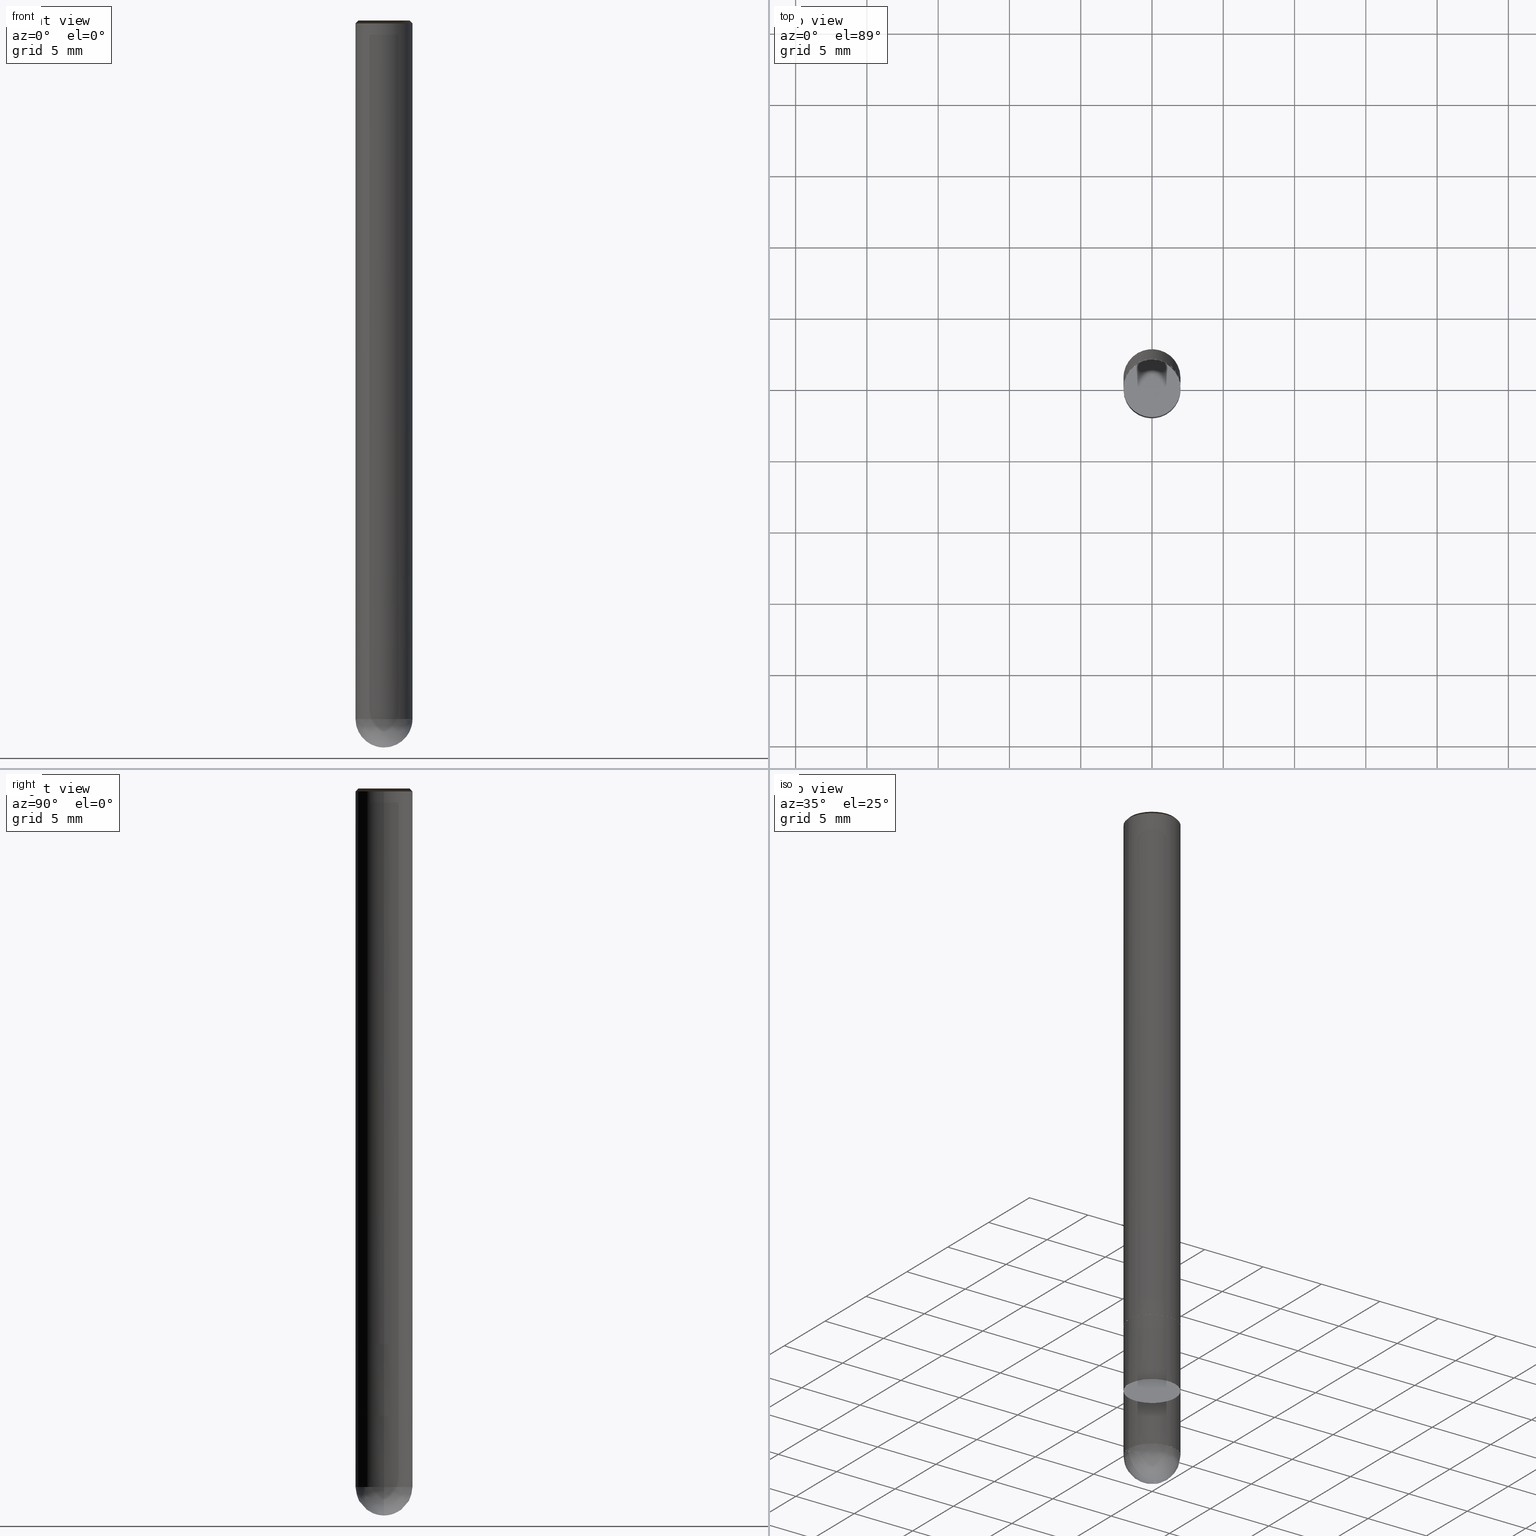
[diagram: canonical four-view strip — front | top / right | iso, engineering-drawing reading convention]
A machine part, canonical four-view strip (front | top / right | iso — engineering-drawing reading convention). The complete STEP part file that produces these views, byte-faithful:
ISO-10303-21;
HEADER;
/* Generated by ISBE GmbH (www.isbe.de) */
/* OPTION: using custom schema-name function */

FILE_DESCRIPTION(
/* description */ (''),
/* implementation_level */ '2;1');

FILE_NAME(
/*name*/ 'Drawing No  1250400   Issue  1',
/*time_stamp*/'2021-9-29T9:0:53',
/*author*/ ('ISBE GmbH'),
/*organization*/ ('ISBE GmbH'),
/*preprocessor_version*/ 'STEP IO v1.0',
/*originating_system*/ '',
/*authorisation*/ '');

FILE_SCHEMA (('AUTOMOTIVE_DESIGN'));
ENDSEC;

DATA;
#10=SHAPE_DEFINITION_REPRESENTATION(#11,#57);
#11=PRODUCT_DEFINITION_SHAPE('Document','',#13);
#12=PRODUCT_DEFINITION_CONTEXT('3D Mechanical Parts',#17,'design');
#13=PRODUCT_DEFINITION('A','First version',#14,#12);
#14=PRODUCT_DEFINITION_FORMATION_WITH_SPECIFIED_SOURCE('A','First version',#19,.MADE.);
#15=PRODUCT_RELATED_PRODUCT_CATEGORY('tool','tool',(#19));
#16=APPLICATION_PROTOCOL_DEFINITION('Draft International Standard', 'automotive_design',1999,#17);
#17=APPLICATION_CONTEXT('data for automotive mechanical design processes');
#18=PRODUCT_CONTEXT('3D Mechanical Parts',#17,'mechanical');
#19=PRODUCT('Document','Document','ISBE converted to STEP',(#18));
#20=(
LENGTH_UNIT()
NAMED_UNIT(*)
SI_UNIT(.MILLI.,.METRE.)
);
#21=(
NAMED_UNIT(*)
PLANE_ANGLE_UNIT()
SI_UNIT($,.RADIAN.)
);
#22=DIMENSIONAL_EXPONENTS(0.,0.,0.,0.,0.,0.,0.);
#23=PLANE_ANGLE_MEASURE_WITH_UNIT(PLANE_ANGLE_MEASURE(0.01745329252),#21);
#24=(
CONVERSION_BASED_UNIT('DEGREES',#23)
NAMED_UNIT(#22)
PLANE_ANGLE_UNIT()
);
#25=(
NAMED_UNIT(*)
SI_UNIT($,.STERADIAN.)
SOLID_ANGLE_UNIT()
);
#26=UNCERTAINTY_MEASURE_WITH_UNIT(LENGTH_MEASURE(0.001),#20, 'DISTANCE_ACCURACY_VALUE', 'Maximum model space distance between geometric entities at asserted connectivities');
#27=(
GEOMETRIC_REPRESENTATION_CONTEXT(3)
GLOBAL_UNCERTAINTY_ASSIGNED_CONTEXT((#26))
GLOBAL_UNIT_ASSIGNED_CONTEXT((#25,#24,#20))
REPRESENTATION_CONTEXT('ID1','3D')
);
#28=CARTESIAN_POINT('',(0.0,0.0,0.0));
#29=DIRECTION('',(1.0,0.0,0.0));
#30=DIRECTION('',(0.0,0.0,1.0));
#31=AXIS2_PLACEMENT_3D('',#28,#30,#29);
#32=CARTESIAN_POINT('',(0.0,0.0,0.0));
#33=DIRECTION('',(1.0,0.0,0.0));
#34=DIRECTION('',(0.0,0.0,1.0));
#35=AXIS2_PLACEMENT_3D('',#32,#34,#33);
#36=CARTESIAN_POINT('',(0.0,0.0,0.0));
#37=DIRECTION('',(1.0,0.0,0.0));
#38=DIRECTION('',(0.0,0.0,1.0));
#39=AXIS2_PLACEMENT_3D('',#36,#38,#37);
#40=CARTESIAN_POINT('',(0.0,0.0,0.0));
#41=DIRECTION('',(0.0,0.0,1.0));
#42=DIRECTION('',(1.0,0.0,0.0));
#43=AXIS2_PLACEMENT_3D('MCS',#40,#42,#41);
#44=CARTESIAN_POINT('',(0.0,0.0,39.0));
#45=DIRECTION('',(0.0,0.0,1.0));
#46=DIRECTION('',(1.0,0.0,0.0));
#47=AXIS2_PLACEMENT_3D('PCS',#44,#46,#45);
#48=CARTESIAN_POINT('',(0.0,0.0,-12.0));
#49=DIRECTION('',(0.0,0.0,1.0));
#50=DIRECTION('',(1.0,0.0,0.0));
#51=AXIS2_PLACEMENT_3D('CIP',#48,#50,#49);
#52=CARTESIAN_POINT('',(0.0,-2.0,-12.0));
#53=DIRECTION('',(0.0,0.0,1.0));
#54=DIRECTION('',(1.0,0.0,0.0));
#55=AXIS2_PLACEMENT_3D('CRP',#52,#54,#53);
#57=SHAPE_REPRESENTATION('Document',(#31,#35,#39,#43,#47,#51,#55),#27);
#58=DIRECTION('',(1.0,0.0,0.0));
#59=DIRECTION('',(0.0,0.0,1.0));
#60=CARTESIAN_POINT('',(-0.01999898138,-0.000201850881,-11.999679401865));
#61=CARTESIAN_POINT('',(-0.019371841542,-0.0611060247,-11.998972432401));
#62=CARTESIAN_POINT('',(-0.018582915878,-0.126785833558,-11.995890785501));
#63=CARTESIAN_POINT('',(-0.017578842118,-0.191239824115,-11.990758225898));
#64=CARTESIAN_POINT('',(-0.016239636919,-0.255238218366,-11.983580027646));
#65=CARTESIAN_POINT('',(-0.014453844092,-0.318872376304,-11.974363566829));
#66=CARTESIAN_POINT('',(-0.012113404118,-0.382125307653,-11.963118313982));
#67=CARTESIAN_POINT('',(-0.009113459438,-0.444948546522,-11.949855824364));
#68=CARTESIAN_POINT('',(-0.005352734971,-0.507280928068,-11.934589726078));
#69=CARTESIAN_POINT('',(-0.000734037573,-0.569054699836,-11.917335706073));
#70=CARTESIAN_POINT('',(0.004835216595,-0.630197887131,-11.898111494021));
#71=CARTESIAN_POINT('',(0.011442472882,-0.690635325679,-11.8769368441));
#72=CARTESIAN_POINT('',(0.019169517323,-0.750289163863,-11.853833514692));
#73=CARTESIAN_POINT('',(0.028091969592,-0.80907914367,-11.828825246032));
#74=CARTESIAN_POINT('',(0.03827879361,-0.866922793703,-11.801937735805));
#75=CARTESIAN_POINT('',(0.049791829162,-0.923735597184,-11.773198612746));
#76=CARTESIAN_POINT('',(0.062685347743,-0.97943116683,-11.742637408247));
#77=CARTESIAN_POINT('',(0.077005635852,-1.033921443614,-11.710285526011));
#78=CARTESIAN_POINT('',(0.092790609027,-1.087116928684,-11.676176209784));
#79=CARTESIAN_POINT('',(0.110069459952,-1.138926953383,-11.640344509194));
#80=CARTESIAN_POINT('',(0.128862343995,-1.189259989673,-11.602827243736));
#81=CARTESIAN_POINT('',(0.149180105555,-1.238024001461,-11.563662964936));
#82=CARTESIAN_POINT('',(0.171024048528,-1.285126836059,-11.522891916738));
#83=CARTESIAN_POINT('',(0.194385754122,-1.330476653977,-11.480555994151));
#84=CARTESIAN_POINT('',(0.219246949088,-1.373982394419,-11.436698700195));
#85=CARTESIAN_POINT('',(0.245579427234,-1.41555427309,-11.391365101207));
#86=CARTESIAN_POINT('',(0.273345026838,-1.455104308329,-11.344601780523));
#87=CARTESIAN_POINT('',(0.302495666221,-1.492546870951,-11.296456790616));
#88=CARTESIAN_POINT('',(0.332973439389,-1.527799252708,-11.246979603717));
#89=CARTESIAN_POINT('',(0.364710773218,-1.560782247836,-11.196221060982));
#90=CARTESIAN_POINT('',(0.397630647142,-1.591420741758,-11.144233320244));
#91=CARTESIAN_POINT('',(0.431646875815,-1.619644300717,-11.091069802421));
#92=CARTESIAN_POINT('',(0.466664454604,-1.645387755908,-11.036785136621));
#93=CARTESIAN_POINT('',(0.502579967198,-1.668591775478,-10.981435104008));
#94=CARTESIAN_POINT('',(0.539282053968,-1.689203417742,-10.925076580482));
#95=CARTESIAN_POINT('',(0.576651939074,-1.707176658955,-10.867767478235));
#96=CARTESIAN_POINT('',(0.61456401367,-1.722472889083,-10.809566686245));
#97=CARTESIAN_POINT('',(0.652886471892,-1.735061369236,-10.750534009759));
#98=CARTESIAN_POINT('',(0.691481995705,-1.74491964467,-10.690730108843));
#99=CARTESIAN_POINT('',(0.730208484048,-1.752033907651,-10.630216436047));
#100=CARTESIAN_POINT('',(0.768919821176,-1.756399304938,-10.569055173262));
#101=CARTESIAN_POINT('',(0.807466678542,-1.758020185121,-10.507309167819));
#102=CARTESIAN_POINT('',(0.845697344116,-1.756910281705,-10.445041867913));
#103=CARTESIAN_POINT('',(0.883458572612,-1.753092828452,-10.382317257403));
#104=CARTESIAN_POINT('',(0.920596449785,-1.746600604221,-10.319199790067));
#105=CARTESIAN_POINT('',(0.956957263684,-1.737475905318,-10.255754323369));
#106=CARTESIAN_POINT('',(0.992388375618,-1.725770444155,-10.192046051815));
#107=CARTESIAN_POINT('',(1.02673908347,-1.711545173848,-10.128140439961));
#108=CARTESIAN_POINT('',(1.059861470061,-1.694870039201,-10.064103155143));
#109=CARTESIAN_POINT('',(1.091611229346,-1.67582365539,-10.0));
#110=CARTESIAN_POINT('',(1.12971572387,-1.650376436829,-9.920634920635));
#111=CARTESIAN_POINT('',(1.167227255058,-1.624062971393,-9.84126984127));
#112=CARTESIAN_POINT('',(1.20412613392,-1.59689707045,-9.761904761905));
#113=CARTESIAN_POINT('',(1.240392993033,-1.568892992793,-9.68253968254));
#114=CARTESIAN_POINT('',(1.276008796708,-1.540065437156,-9.603174603175));
#115=CARTESIAN_POINT('',(1.31095485098,-1.510429534501,-9.52380952381));
#116=CARTESIAN_POINT('',(1.34521281342,-1.480000840071,-9.444444444444));
#117=CARTESIAN_POINT('',(1.378764702768,-1.448795325228,-9.365079365079));
#118=CARTESIAN_POINT('',(1.41159290836,-1.416829369073,-9.285714285714));
#119=CARTESIAN_POINT('',(1.443680199384,-1.384119749844,-9.206349206349));
#120=CARTESIAN_POINT('',(1.475009733914,-1.350683636112,-9.126984126984));
#121=CARTESIAN_POINT('',(1.505565067755,-1.31653857777,-9.047619047619));
#122=CARTESIAN_POINT('',(1.535330163075,-1.281702496819,-8.968253968254));
#123=CARTESIAN_POINT('',(1.564289396818,-1.246193677966,-8.888888888889));
#124=CARTESIAN_POINT('',(1.59242756891,-1.21003075902,-8.809523809524));
#125=CARTESIAN_POINT('',(1.619729910233,-1.173232721116,-8.730158730159));
#126=CARTESIAN_POINT('',(1.646182090379,-1.135818878746,-8.650793650794));
#127=CARTESIAN_POINT('',(1.671770225171,-1.097808869627,-8.571428571429));
#128=CARTESIAN_POINT('',(1.696480883951,-1.05922264439,-8.492063492063));
#129=CARTESIAN_POINT('',(1.720301096629,-1.02008045611,-8.412698412698));
#130=CARTESIAN_POINT('',(1.74321836049,-0.980402849675,-8.333333333333));
#131=CARTESIAN_POINT('',(1.765220646759,-0.940210651001,-8.253968253968));
#132=CARTESIAN_POINT('',(1.786296406912,-0.899524956103,-8.174603174603));
#133=CARTESIAN_POINT('',(1.806434578739,-0.858367120022,-8.095238095238));
#134=CARTESIAN_POINT('',(1.825624592149,-0.816758745617,-8.015873015873));
#135=CARTESIAN_POINT('',(1.843856374719,-0.774721672221,-7.936507936508));
#136=CARTESIAN_POINT('',(1.861120356981,-0.732277964185,-7.857142857143));
#137=CARTESIAN_POINT('',(1.877407477444,-0.689449899294,-7.777777777778));
#138=CARTESIAN_POINT('',(1.892709187352,-0.646259957071,-7.698412698413));
#139=CARTESIAN_POINT('',(1.907017455168,-0.602730806982,-7.619047619048));
#140=CARTESIAN_POINT('',(1.920324770792,-0.558885296536,-7.539682539683));
#141=CARTESIAN_POINT('',(1.932624149501,-0.514746439293,-7.460317460317));
#142=CARTESIAN_POINT('',(1.943909135619,-0.470337402784,-7.380952380952));
#143=CARTESIAN_POINT('',(1.9541738059,-0.425681496351,-7.301587301587));
#144=CARTESIAN_POINT('',(1.96341277264,-0.380802158912,-7.222222222222));
#145=CARTESIAN_POINT('',(1.971621186507,-0.335722946662,-7.142857142857));
#146=CARTESIAN_POINT('',(1.978794739082,-0.290467520702,-7.063492063492));
#147=CARTESIAN_POINT('',(1.984929665121,-0.245059634626,-6.984126984127));
#148=CARTESIAN_POINT('',(1.990022744535,-0.199523122052,-6.904761904762));
#149=CARTESIAN_POINT('',(1.994071304077,-0.153881884109,-6.825396825397));
#150=CARTESIAN_POINT('',(1.997073218745,-0.108159876895,-6.746031746032));
#151=CARTESIAN_POINT('',(1.9990269129,-0.062381098902,-6.666666666667));
#152=CARTESIAN_POINT('',(1.99993136109,-0.016569578421,-6.587301587302));
#153=CARTESIAN_POINT('',(1.999786088589,0.029250639074,-6.507936507937));
#154=CARTESIAN_POINT('',(1.998591171648,0.075055503541,-6.428571428571));
#155=CARTESIAN_POINT('',(1.996347237452,0.120820972999,-6.349206349206));
#156=CARTESIAN_POINT('',(1.993055463795,0.166523026142,-6.269841269841));
#157=CARTESIAN_POINT('',(1.988717578457,0.212137674953,-6.190476190476));
#158=CARTESIAN_POINT('',(1.983335858301,0.25764097729,-6.111111111111));
#159=CARTESIAN_POINT('',(1.976913128074,0.303009049453,-6.031746031746));
#160=CARTESIAN_POINT('',(1.969452758928,0.348218078723,-5.952380952381));
#161=CARTESIAN_POINT('',(1.960958666651,0.39324433586,-5.873015873016));
#162=CARTESIAN_POINT('',(1.951435309607,0.438064187555,-5.793650793651));
#163=CARTESIAN_POINT('',(1.940887686401,0.482654108838,-5.714285714286));
#164=CARTESIAN_POINT('',(1.929321333251,0.526990695425,-5.634920634921));
#165=CARTESIAN_POINT('',(1.916742321085,0.571050676,-5.555555555556));
#166=CARTESIAN_POINT('',(1.903157252356,0.614810924434,-5.47619047619));
#167=CARTESIAN_POINT('',(1.888573257572,0.658248471918,-5.396825396825));
#168=CARTESIAN_POINT('',(1.872997991556,0.701340519025,-5.31746031746));
#169=CARTESIAN_POINT('',(1.856439629428,0.744064447672,-5.238095238095));
#170=CARTESIAN_POINT('',(1.838906862314,0.786397832992,-5.15873015873));
#171=CARTESIAN_POINT('',(1.820408892784,0.828318455108,-5.079365079365));
#172=CARTESIAN_POINT('',(1.800955430022,0.869804310793,-5.0));
#173=CARTESIAN_POINT('',(0.01017429868,-0.017218700484,-11.999679401865));
#174=CARTESIAN_POINT('',(0.062605290485,0.013776505457,-11.998972432401));
#175=CARTESIAN_POINT('',(0.11909121064,0.047299639552,-11.995890785501));
#176=CARTESIAN_POINT('',(0.174407966958,0.080396188214,-11.990758225898));
#177=CARTESIAN_POINT('',(0.229162599581,0.113555171063,-11.983580027646));
#178=CARTESIAN_POINT('',(0.28337850049,0.146918791986,-11.974363566829));
#179=CARTESIAN_POINT('',(0.336986925915,0.180572138134,-11.963118313982));
#180=CARTESIAN_POINT('',(0.389893474384,0.214581785872,-11.949855824364));
#181=CARTESIAN_POINT('',(0.441994538048,0.24900485957,-11.934589726078));
#182=CARTESIAN_POINT('',(0.493182844987,0.283891654733,-11.917335706073));
#183=CARTESIAN_POINT('',(0.54334977137,0.319286363969,-11.898111494021));
#184=CARTESIAN_POINT('',(0.592386500348,0.355227135038,-11.8769368441));
#185=CARTESIAN_POINT('',(0.640184717428,0.391745870912,-11.853833514692));
#186=CARTESIAN_POINT('',(0.686637107294,0.428867931144,-11.828825246032));
#187=CARTESIAN_POINT('',(0.731637765662,0.466611804544,-11.801937735805));
#188=CARTESIAN_POINT('',(0.77508257896,0.504988787547,-11.773198612746));
#189=CARTESIAN_POINT('',(0.816869597861,0.544002687006,-11.742637408247));
#190=CARTESIAN_POINT('',(0.856899417761,0.583649558689,-11.710285526011));
#191=CARTESIAN_POINT('',(0.895075572611,0.623917488992,-11.676176209784));
#192=CARTESIAN_POINT('',(0.931304944709,0.664786425191,-11.640344509194));
#193=CARTESIAN_POINT('',(0.965498190764,0.706228058328,-11.602827243736));
#194=CARTESIAN_POINT('',(0.997570182983,0.74820576188,-11.563662964936));
#195=CARTESIAN_POINT('',(1.027440462848,0.790674588713,-11.522891916738));
#196=CARTESIAN_POINT('',(1.055033704425,0.833581328192,-11.480555994151));
#197=CARTESIAN_POINT('',(1.080280183375,0.876864624821,-11.436698700195));
#198=CARTESIAN_POINT('',(1.103116247314,0.920455159176,-11.391365101207));
#199=CARTESIAN_POINT('',(1.12348478275,0.964275891405,-11.344601780523));
#200=CARTESIAN_POINT('',(1.141335673472,1.008242366957,-11.296456790616));
#201=CARTESIAN_POINT('',(1.156626245033,1.05226308365,-11.246979603717));
#202=CARTESIAN_POINT('',(1.169321689793,1.096239918559,-11.196221060982));
#203=CARTESIAN_POINT('',(1.179395466901,1.140068612627,-11.144233320244));
#204=CARTESIAN_POINT('',(1.186829671608,1.183639310278,-11.091069802421));
#205=CARTESIAN_POINT('',(1.19161536839,1.226837150684,-11.036785136621));
#206=CARTESIAN_POINT('',(1.193752882511,1.269542906765,-10.981435104008));
#207=CARTESIAN_POINT('',(1.193252044941,1.311633667412,-10.925076580482));
#208=CARTESIAN_POINT('',(1.190132385866,1.352983557857,-10.867767478235));
#209=CARTESIAN_POINT('',(1.184423272441,1.393464492631,-10.809566686245));
#210=CARTESIAN_POINT('',(1.176163986937,1.432946955064,-10.750534009759));
#211=CARTESIAN_POINT('',(1.165403741994,1.471300796875,-10.690730108843));
#212=CARTESIAN_POINT('',(1.152201630294,1.50839605107,-10.630216436047));
#213=CARTESIAN_POINT('',(1.136626506678,1.54410375108,-10.569055173262));
#214=CARTESIAN_POINT('',(1.118756801409,1.578296748887,-10.507309167819));
#215=CARTESIAN_POINT('',(1.098680264068,1.61085052477,-10.445041867913));
#216=CARTESIAN_POINT('',(1.076493638325,1.6416439813,-10.382317257403));
#217=CARTESIAN_POINT('',(1.052302268628,1.670560214258,-10.319199790067));
#218=CARTESIAN_POINT('',(1.026219640627,1.697487253345,-10.255754323369));
#219=CARTESIAN_POINT('',(0.99836685793,1.722318765784,-10.192046051815));
#220=CARTESIAN_POINT('',(0.968872058541,1.744954716267,-10.128140439961));
#221=CARTESIAN_POINT('',(0.937869775031,1.765301977165,-10.064103155143));
#222=CARTESIAN_POINT('',(0.905500243157,1.783274883365,-10.0));
#223=CARTESIAN_POINT('',(0.864410058167,1.803550734341,-9.920634920635));
#224=CARTESIAN_POINT('',(0.822866163043,1.822879940566,-9.84126984127));
#225=CARTESIAN_POINT('',(0.780890363278,1.84125235656,-9.761904761905));
#226=CARTESIAN_POINT('',(0.738504691061,1.858658339039,-9.68253968254));
#227=CARTESIAN_POINT('',(0.695731393714,1.87508875198,-9.603174603175));
#228=CARTESIAN_POINT('',(0.652592922014,1.890534971413,-9.52380952381));
#229=CARTESIAN_POINT('',(0.609111918413,1.904988889954,-9.444444444444));
#230=CARTESIAN_POINT('',(0.565311205148,1.918442921052,-9.365079365079));
#231=CARTESIAN_POINT('',(0.521213772265,1.930890002978,-9.285714285714));
#232=CARTESIAN_POINT('',(0.476842765552,1.942323602529,-9.206349206349));
#233=CARTESIAN_POINT('',(0.432221474392,1.952737718454,-9.126984126984));
#234=CARTESIAN_POINT('',(0.387373319533,1.962126884611,-9.047619047619));
#235=CARTESIAN_POINT('',(0.342321840802,1.970486172829,-8.968253968254));
#236=CARTESIAN_POINT('',(0.297090684745,1.977811195498,-8.888888888889));
#237=CARTESIAN_POINT('',(0.251703592217,1.984098107873,-8.809523809524));
#238=CARTESIAN_POINT('',(0.206184385921,1.989343610089,-8.730158730159));
#239=CARTESIAN_POINT('',(0.160556957902,1.993544948896,-8.650793650794));
#240=CARTESIAN_POINT('',(0.114845257011,1.996699919102,-8.571428571429));
#241=CARTESIAN_POINT('',(0.06907327633,1.998806864731,-8.492063492063));
#242=CARTESIAN_POINT('',(0.023265040581,1.999864679894,-8.412698412698));
#243=CARTESIAN_POINT('',(-0.022555406484,1.999872809365,-8.333333333333));
#244=CARTESIAN_POINT('',(-0.068364014704,1.998831248879,-8.253968253968));
#245=CARTESIAN_POINT('',(-0.114136740133,1.996740545126,-8.174603174603));
#246=CARTESIAN_POINT('',(-0.159849557657,1.993601795474,-8.095238095238));
#247=CARTESIAN_POINT('',(-0.205478473607,1.989416647383,-8.015873015873));
#248=CARTESIAN_POINT('',(-0.250999538354,1.984187297547,-7.936507936508));
#249=CARTESIAN_POINT('',(-0.296388858874,1.977916490738,-7.857142857143));
#250=CARTESIAN_POINT('',(-0.341622611297,1.970607518369,-7.777777777778));
#251=CARTESIAN_POINT('',(-0.386677053404,1.962264216758,-7.698412698413));
#252=CARTESIAN_POINT('',(-0.431528537094,1.952890965127,-7.619047619048));
#253=CARTESIAN_POINT('',(-0.476153520794,1.94249268329,-7.539682539683));
#254=CARTESIAN_POINT('',(-0.520528581815,1.931074829082,-7.460317460317));
#255=CARTESIAN_POINT('',(-0.564630428649,1.918643395487,-7.380952380952));
#256=CARTESIAN_POINT('',(-0.608435913189,1.905204907495,-7.301587301587));
#257=CARTESIAN_POINT('',(-0.651922042886,1.890766418678,-7.222222222222));
#258=CARTESIAN_POINT('',(-0.695065992811,1.875335507486,-7.142857142857));
#259=CARTESIAN_POINT('',(-0.737845117639,1.858920273271,-7.063492063492));
#260=CARTESIAN_POINT('',(-0.780236963532,1.841529332033,-6.984126984127));
#261=CARTESIAN_POINT('',(-0.822219279928,1.823171811902,-6.904761904762));
#262=CARTESIAN_POINT('',(-0.863770031218,1.803857348343,-6.825396825397));
#263=CARTESIAN_POINT('',(-0.904867408312,1.783596079098,-6.746031746032));
#264=CARTESIAN_POINT('',(-0.945489840085,1.762398638871,-6.666666666667));
#265=CARTESIAN_POINT('',(-0.985616004703,1.740276153739,-6.587301587302));
#266=CARTESIAN_POINT('',(-1.02522484081,1.717240235316,-6.507936507937));
#267=CARTESIAN_POINT('',(-1.064295558584,1.693302974656,-6.428571428571));
#268=CARTESIAN_POINT('',(-1.102807650653,1.668476935909,-6.349206349206));
#269=CARTESIAN_POINT('',(-1.140740902852,1.642775149727,-6.269841269841));
#270=CARTESIAN_POINT('',(-1.178075404838,1.61621110642,-6.190476190476));
#271=CARTESIAN_POINT('',(-1.214791560539,1.58879874888,-6.111111111111));
#272=CARTESIAN_POINT('',(-1.250870098439,1.56055246526,-6.031746031746));
#273=CARTESIAN_POINT('',(-1.286292081695,1.531487081424,-5.952380952381));
#274=CARTESIAN_POINT('',(-1.321038918074,1.501617853161,-5.873015873016));
#275=CARTESIAN_POINT('',(-1.355092369714,1.470960458185,-5.793650793651));
#276=CARTESIAN_POINT('',(-1.388434562695,1.439530987896,-5.714285714286));
#277=CARTESIAN_POINT('',(-1.421047996421,1.407345938946,-5.634920634921));
#278=CARTESIAN_POINT('',(-1.452915552807,1.374422204569,-5.555555555556));
#279=CARTESIAN_POINT('',(-1.484020505262,1.340777065721,-5.47619047619));
#280=CARTESIAN_POINT('',(-1.51434652747,1.306428182006,-5.396825396825));
#281=CARTESIAN_POINT('',(-1.543877701957,1.271393582412,-5.31746031746));
#282=CARTESIAN_POINT('',(-1.572598528451,1.235691655841,-5.238095238095));
#283=CARTESIAN_POINT('',(-1.600493932009,1.199341141461,-5.15873015873));
#284=CARTESIAN_POINT('',(-1.627549270939,1.162361118872,-5.079365079365));
#285=CARTESIAN_POINT('',(-1.653750344479,1.124770998086,-5.0));
#286=CARTESIAN_POINT('',(0.009824682699,0.017420551365,-11.999679401865));
#287=CARTESIAN_POINT('',(-0.043233448943,0.047329519243,-11.998972432401));
#288=CARTESIAN_POINT('',(-0.100508294762,0.079486194006,-11.995890785501));
#289=CARTESIAN_POINT('',(-0.15682912484,0.110843635901,-11.990758225898));
#290=CARTESIAN_POINT('',(-0.212922962662,0.141683047303,-11.983580027646));
#291=CARTESIAN_POINT('',(-0.268924656398,0.171953584318,-11.974363566829));
#292=CARTESIAN_POINT('',(-0.324873521797,0.201553169519,-11.963118313982));
#293=CARTESIAN_POINT('',(-0.380780014946,0.230366760651,-11.949855824364));
#294=CARTESIAN_POINT('',(-0.436641803077,0.258276068498,-11.934589726078));
#295=CARTESIAN_POINT('',(-0.492448807414,0.285163045103,-11.917335706073));
#296=CARTESIAN_POINT('',(-0.548184987964,0.310911523162,-11.898111494021));
#297=CARTESIAN_POINT('',(-0.60382897323,0.335408190642,-11.8769368441));
#298=CARTESIAN_POINT('',(-0.659354234751,0.358543292951,-11.853833514692));
#299=CARTESIAN_POINT('',(-0.714729076887,0.380211212526,-11.828825246032));
#300=CARTESIAN_POINT('',(-0.769916559272,0.400310989159,-11.801937735805));
#301=CARTESIAN_POINT('',(-0.824874408122,0.418746809636,-11.773198612746));
#302=CARTESIAN_POINT('',(-0.879554945604,0.435428479824,-11.742637408247));
#303=CARTESIAN_POINT('',(-0.933905053613,0.450271884925,-11.710285526011));
#304=CARTESIAN_POINT('',(-0.987866181638,0.463199439692,-11.676176209784));
#305=CARTESIAN_POINT('',(-1.041374404661,0.474140528192,-11.640344509194));
#306=CARTESIAN_POINT('',(-1.094360534759,0.483031931346,-11.602827243736));
#307=CARTESIAN_POINT('',(-1.146750288538,0.489818239581,-11.563662964936));
#308=CARTESIAN_POINT('',(-1.198464511376,0.494452247346,-11.522891916738));
#309=CARTESIAN_POINT('',(-1.249419458548,0.496895325785,-11.480555994151));
#310=CARTESIAN_POINT('',(-1.299527132463,0.497117769597,-11.436698700195));
#311=CARTESIAN_POINT('',(-1.348695674548,0.495099113913,-11.391365101207));
#312=CARTESIAN_POINT('',(-1.396829809588,0.490828416924,-11.344601780523));
#313=CARTESIAN_POINT('',(-1.443831339693,0.484304503993,-11.296456790616));
#314=CARTESIAN_POINT('',(-1.489599684422,0.475536169057,-11.246979603717));
#315=CARTESIAN_POINT('',(-1.534032463011,0.464542329278,-11.196221060982));
#316=CARTESIAN_POINT('',(-1.577026114042,0.451352129131,-11.144233320244));
#317=CARTESIAN_POINT('',(-1.618476547423,0.436004990439,-11.091069802421));
#318=CARTESIAN_POINT('',(-1.658279822994,0.418550605224,-11.036785136621));
#319=CARTESIAN_POINT('',(-1.696332849709,0.399048868712,-10.981435104008));
#320=CARTESIAN_POINT('',(-1.732534098908,0.37756975033,-10.925076580482));
#321=CARTESIAN_POINT('',(-1.76678432494,0.354193101098,-10.867767478235));
#322=CARTESIAN_POINT('',(-1.79898728611,0.329008396452,-10.809566686245));
#323=CARTESIAN_POINT('',(-1.82905045883,0.302114414172,-10.750534009759));
#324=CARTESIAN_POINT('',(-1.856885737699,0.273618847795,-10.690730108843));
#325=CARTESIAN_POINT('',(-1.882410114342,0.243637856581,-10.630216436047));
#326=CARTESIAN_POINT('',(-1.905546327853,0.212295553858,-10.569055173262));
#327=CARTESIAN_POINT('',(-1.926223479951,0.179723436234,-10.507309167819));
#328=CARTESIAN_POINT('',(-1.944377608184,0.146059756935,-10.445041867913));
#329=CARTESIAN_POINT('',(-1.959952210938,0.111448847152,-10.382317257403));
#330=CARTESIAN_POINT('',(-1.972898718413,0.076040389963,-10.319199790067));
#331=CARTESIAN_POINT('',(-1.983176904311,0.039988651972,-10.255754323369));
#332=CARTESIAN_POINT('',(-1.990755233548,0.003451678372,-10.192046051815));
#333=CARTESIAN_POINT('',(-1.995611142012,-0.03340954242,-10.128140439961));
#334=CARTESIAN_POINT('',(-1.997731245092,-0.070431937964,-10.064103155143));
#335=CARTESIAN_POINT('',(-1.997111472504,-0.107451227975,-10.0));
#336=CARTESIAN_POINT('',(-1.994125782036,-0.153174297511,-9.920634920635));
#337=CARTESIAN_POINT('',(-1.990093418101,-0.198816969173,-9.84126984127));
#338=CARTESIAN_POINT('',(-1.985016497198,-0.244355286111,-9.761904761905));
#339=CARTESIAN_POINT('',(-1.978897684094,-0.289765346247,-9.68253968254));
#340=CARTESIAN_POINT('',(-1.971740190422,-0.335023314823,-9.603174603175));
#341=CARTESIAN_POINT('',(-1.963547772994,-0.380105436912,-9.52380952381));
#342=CARTESIAN_POINT('',(-1.954324731834,-0.424988049883,-9.444444444444));
#343=CARTESIAN_POINT('',(-1.944075907915,-0.469647595824,-9.365079365079));
#344=CARTESIAN_POINT('',(-1.932806680625,-0.514060633906,-9.285714285714));
#345=CARTESIAN_POINT('',(-1.920522964936,-0.558203852685,-9.206349206349));
#346=CARTESIAN_POINT('',(-1.907231208305,-0.602054082343,-9.126984126984));
#347=CARTESIAN_POINT('',(-1.892938387288,-0.645588306842,-9.047619047619));
#348=CARTESIAN_POINT('',(-1.877652003877,-0.68878367601,-8.968253968254));
#349=CARTESIAN_POINT('',(-1.861380081563,-0.731617517532,-8.888888888889));
#350=CARTESIAN_POINT('',(-1.844131161127,-0.774067348853,-8.809523809524));
#351=CARTESIAN_POINT('',(-1.825914296154,-0.816110888973,-8.730158730159));
#352=CARTESIAN_POINT('',(-1.806739048281,-0.85772607015,-8.650793650794));
#353=CARTESIAN_POINT('',(-1.786615482182,-0.898891049475,-8.571428571429));
#354=CARTESIAN_POINT('',(-1.765554160281,-0.939584220341,-8.492063492063));
#355=CARTESIAN_POINT('',(-1.74356613721,-0.979784223783,-8.412698412698));
#356=CARTESIAN_POINT('',(-1.720662954006,-1.01946995969,-8.333333333333));
#357=CARTESIAN_POINT('',(-1.696856632055,-1.058620597878,-8.253968253968));
#358=CARTESIAN_POINT('',(-1.672159666779,-1.097215589024,-8.174603174603));
#359=CARTESIAN_POINT('',(-1.646585021082,-1.135234675452,-8.095238095238));
#360=CARTESIAN_POINT('',(-1.620146118542,-1.172657901766,-8.015873015873));
#361=CARTESIAN_POINT('',(-1.592856836365,-1.209465625326,-7.936507936508));
#362=CARTESIAN_POINT('',(-1.564731498107,-1.245638526553,-7.857142857143));
#363=CARTESIAN_POINT('',(-1.535784866147,-1.281157619075,-7.777777777778));
#364=CARTESIAN_POINT('',(-1.506032133948,-1.316004259688,-7.698412698413));
#365=CARTESIAN_POINT('',(-1.475488918074,-1.350160158145,-7.619047619048));
#366=CARTESIAN_POINT('',(-1.444171249998,-1.383607386754,-7.539682539683));
#367=CARTESIAN_POINT('',(-1.412095567686,-1.416328389789,-7.460317460317));
#368=CARTESIAN_POINT('',(-1.37927870697,-1.448305992703,-7.380952380952));
#369=CARTESIAN_POINT('',(-1.34573789271,-1.479523411144,-7.301587301587));
#370=CARTESIAN_POINT('',(-1.311490729754,-1.509964259765,-7.222222222222));
#371=CARTESIAN_POINT('',(-1.276555193696,-1.539612560824,-7.142857142857));
#372=CARTESIAN_POINT('',(-1.240949621443,-1.568452752569,-7.063492063492));
#373=CARTESIAN_POINT('',(-1.204692701589,-1.596469697407,-6.984126984127));
#374=CARTESIAN_POINT('',(-1.167803464607,-1.62364868985,-6.904761904762));
#375=CARTESIAN_POINT('',(-1.130301272859,-1.649975464234,-6.825396825397));
#376=CARTESIAN_POINT('',(-1.092205810434,-1.675436202204,-6.746031746032));
#377=CARTESIAN_POINT('',(-1.053537072815,-1.700017539969,-6.666666666667));
#378=CARTESIAN_POINT('',(-1.014315356387,-1.723706575319,-6.587301587302));
#379=CARTESIAN_POINT('',(-0.974561247779,-1.74649087439,-6.507936507937));
#380=CARTESIAN_POINT('',(-0.934295613063,-1.768358478197,-6.428571428571));
#381=CARTESIAN_POINT('',(-0.893539586799,-1.789297908908,-6.349206349206));
#382=CARTESIAN_POINT('',(-0.852314560943,-1.809298175869,-6.269841269841));
#383=CARTESIAN_POINT('',(-0.810642173619,-1.828348781373,-6.190476190476));
#384=CARTESIAN_POINT('',(-0.768544297762,-1.84643972617,-6.111111111111));
#385=CARTESIAN_POINT('',(-0.726043029634,-1.863561514713,-6.031746031746));
#386=CARTESIAN_POINT('',(-0.683160677233,-1.879705160147,-5.952380952381));
#387=CARTESIAN_POINT('',(-0.639919748577,-1.894862189021,-5.873015873016));
#388=CARTESIAN_POINT('',(-0.596342939893,-1.909024645739,-5.793650793651));
#389=CARTESIAN_POINT('',(-0.552453123706,-1.922185096734,-5.714285714286));
#390=CARTESIAN_POINT('',(-0.50827333683,-1.934336634371,-5.634920634921));
#391=CARTESIAN_POINT('',(-0.463826768279,-1.945472880569,-5.555555555556));
#392=CARTESIAN_POINT('',(-0.419136747095,-1.955587990154,-5.47619047619));
#393=CARTESIAN_POINT('',(-0.374226730103,-1.964676653925,-5.396825396825));
#394=CARTESIAN_POINT('',(-0.329120289599,-1.972734101437,-5.31746031746));
#395=CARTESIAN_POINT('',(-0.283841100977,-1.979756103513,-5.238095238095));
#396=CARTESIAN_POINT('',(-0.238412930305,-1.985738974453,-5.15873015873));
#397=CARTESIAN_POINT('',(-0.192859621845,-1.99067957398,-5.079365079365));
#398=CARTESIAN_POINT('',(-0.147205085543,-1.994575308879,-5.0));
#399=CARTESIAN_POINT('',(0.0,0.0,-12.0));
#400=CARTESIAN_POINT('',(2.0,0.0,-12.0));
#401=CARTESIAN_POINT('',(2.0,2.0,-12.0));
#402=CARTESIAN_POINT('',(0.0,2.0,-12.0));
#403=CARTESIAN_POINT('',(-2.0,2.0,-12.0));
#404=CARTESIAN_POINT('',(-2.0,0.0,-12.0));
#405=CARTESIAN_POINT('',(2.0,0.0,-10.0));
#406=CARTESIAN_POINT('',(2.0,2.0,-10.0));
#407=CARTESIAN_POINT('',(0.0,2.0,-10.0));
#408=CARTESIAN_POINT('',(-2.0,2.0,-10.0));
#409=CARTESIAN_POINT('',(-2.0,0.0,-10.0));
#410=CARTESIAN_POINT('',(2.0,0.0,-5.0));
#411=CARTESIAN_POINT('',(2.0,2.0,-5.0));
#412=CARTESIAN_POINT('',(0.0,2.0,-5.0));
#413=CARTESIAN_POINT('',(-2.0,2.0,-5.0));
#414=CARTESIAN_POINT('',(-2.0,0.0,-5.0));
#415=CARTESIAN_POINT('',(0.0,0.0,-5.0));
#416=CARTESIAN_POINT('',(-2.0,-2.0,-12.0));
#417=CARTESIAN_POINT('',(0.0,-2.0,-12.0));
#418=CARTESIAN_POINT('',(2.0,-2.0,-12.0));
#419=CARTESIAN_POINT('',(-2.0,-2.0,-10.0));
#420=CARTESIAN_POINT('',(0.0,-2.0,-10.0));
#421=CARTESIAN_POINT('',(2.0,-2.0,-10.0));
#422=CARTESIAN_POINT('',(-2.0,-2.0,-5.0));
#423=CARTESIAN_POINT('',(0.0,-2.0,-5.0));
#424=CARTESIAN_POINT('',(2.0,-2.0,-5.0));
#425=CARTESIAN_POINT('',(2.0,0.0,0.0));
#426=CARTESIAN_POINT('',(2.0,2.0,0.0));
#427=CARTESIAN_POINT('',(0.0,2.0,0.0));
#428=CARTESIAN_POINT('',(-2.0,2.0,0.0));
#429=CARTESIAN_POINT('',(-2.0,0.0,0.0));
#430=CARTESIAN_POINT('',(2.0,0.0,38.8));
#431=CARTESIAN_POINT('',(2.0,2.0,38.8));
#432=CARTESIAN_POINT('',(0.0,2.0,38.8));
#433=CARTESIAN_POINT('',(-2.0,2.0,38.8));
#434=CARTESIAN_POINT('',(-2.0,0.0,38.8));
#435=CARTESIAN_POINT('',(1.8,0.0,39.0));
#436=CARTESIAN_POINT('',(1.8,1.8,39.0));
#437=CARTESIAN_POINT('',(0.0,1.8,39.0));
#438=CARTESIAN_POINT('',(-1.8,1.8,39.0));
#439=CARTESIAN_POINT('',(-1.8,0.0,39.0));
#440=CARTESIAN_POINT('',(0.0,0.0,39.0));
#441=CARTESIAN_POINT('',(-2.0,-2.0,0.0));
#442=CARTESIAN_POINT('',(0.0,-2.0,0.0));
#443=CARTESIAN_POINT('',(2.0,-2.0,0.0));
#444=CARTESIAN_POINT('',(-2.0,-2.0,38.8));
#445=CARTESIAN_POINT('',(0.0,-2.0,38.8));
#446=CARTESIAN_POINT('',(2.0,-2.0,38.8));
#447=CARTESIAN_POINT('',(-1.8,-1.8,39.0));
#448=CARTESIAN_POINT('',(0.0,-1.8,39.0));
#449=CARTESIAN_POINT('',(1.8,-1.8,39.0));
#450=(
BOUNDED_CURVE()
B_SPLINE_CURVE(1,(#60,#61,#62,#63,#64,#65,#66,#67,#68,#69,#70,#71,#72,#73,#74,#75,#76,#77,#78,#79,#80,#81,#82,#83,#84,#85,#86,#87,#88,#89,#90,#91,#92,#93,#94,#95,#96,#97,#98,#99,#100,#101,#102,#103,#104,#105,#106,#107,#108,#109,#110,#111,#112,#113,#114,#115,#116,#117,#118,#119,#120,#121,#122,#123,#124,#125,#126,#127,#128,#129,#130,#131,#132,#133,#134,#135,#136,#137,#138,#139,#140,#141,#142,#143,#144,#145,#146,#147,#148,#149,#150,#151,#152,#153,#154,#155,#156,#157,#158,#159,#160,#161,#162,#163,#164,#165,#166,#167,#168,#169,#170,#171,#172),.UNSPECIFIED.,.F.,.F.)
B_SPLINE_CURVE_WITH_KNOTS((2,1,1,1,1,1,1,1,1,1,1,1,1,1,1,1,1,1,1,1,1,1,1,1,1,1,1,1,1,1,1,1,1,1,1,1,1,1,1,1,1,1,1,1,1,1,1,1,1,1,1,1,1,1,1,1,1,1,1,1,1,1,1,1,1,1,1,1,1,1,1,1,1,1,1,1,1,1,1,1,1,1,1,1,1,1,1,1,1,1,1,1,1,1,1,1,1,1,1,1,1,1,1,1,1,1,1,1,1,1,1,1,2),
(0.0,0.00668916786,0.013910434911,0.021011893315,0.028085655729,0.035149457838,0.042209356376,0.049268217894,0.056327822524,0.063389570626,0.070454770876,0.077524773997,0.084601039581,0.091685169401,0.098778921452,0.105884211393,0.113003104805,0.120137802231,0.127290618276,0.134463955759,0.14166027578,0.148882064516,0.156131797584,0.163411902785,0.170724722071,0.178072473543,0.185457214288,0.192880804793,0.200344875606,0.207850796875,0.215399651254,0.222992210607,0.230628916837,0.238309867046,0.246034803181,0.253803106181,0.261613794625,0.26946552775,0.277356612702,0.285285015805,0.29324837761,0.30124403145,0.30926902521,0.317320146008,0.325393947467,0.333486779256,0.341594818581,0.3497141033,0.357840566335,0.365970071067,0.376034038193,0.386098005319,0.396161972445,0.406225939571,0.416289906697,0.426353873823,0.436417840949,0.446481808075,0.456545775201,0.466609742326,0.476673709452,0.486737676578,0.496801643704,0.50686561083,0.516929577956,0.526993545082,0.537057512208,0.547121479334,0.55718544646,0.567249413586,0.577313380712,0.587377347837,0.597441314963,0.607505282089,0.617569249215,0.627633216341,0.637697183467,0.647761150593,0.657825117719,0.667889084845,0.677953051971,0.688017019097,0.698080986223,0.708144953348,0.718208920474,0.7282728876,0.738336854726,0.748400821852,0.758464788978,0.768528756104,0.77859272323,0.788656690356,0.798720657482,0.808784624608,0.818848591734,0.828912558859,0.838976525985,0.849040493111,0.859104460237,0.869168427363,0.879232394489,0.889296361615,0.899360328741,0.909424295867,0.919488262993,0.929552230119,0.939616197245,0.94968016437,0.959744131496,0.969808098622,0.979872065748,0.989936032874,1.0),.UNSPECIFIED.)
CURVE()
GEOMETRIC_REPRESENTATION_ITEM()
RATIONAL_B_SPLINE_CURVE((1.0,1.0,1.0,1.0,1.0,1.0,1.0,1.0,1.0,1.0,1.0,1.0,1.0,1.0,1.0,1.0,1.0,1.0,1.0,1.0,1.0,1.0,1.0,1.0,1.0,1.0,1.0,1.0,1.0,1.0,1.0,1.0,1.0,1.0,1.0,1.0,1.0,1.0,1.0,1.0,1.0,1.0,1.0,1.0,1.0,1.0,1.0,1.0,1.0,1.0,1.0,1.0,1.0,1.0,1.0,1.0,1.0,1.0,1.0,1.0,1.0,1.0,1.0,1.0,1.0,1.0,1.0,1.0,1.0,1.0,1.0,1.0,1.0,1.0,1.0,1.0,1.0,1.0,1.0,1.0,1.0,1.0,1.0,1.0,1.0,1.0,1.0,1.0,1.0,1.0,1.0,1.0,1.0,1.0,1.0,1.0,1.0,1.0,1.0,1.0,1.0,1.0,1.0,1.0,1.0,1.0,1.0,1.0,1.0,1.0,1.0,1.0,1.0))
REPRESENTATION_ITEM('')
);
#451=(
BOUNDED_CURVE()
B_SPLINE_CURVE(1,(#173,#174,#175,#176,#177,#178,#179,#180,#181,#182,#183,#184,#185,#186,#187,#188,#189,#190,#191,#192,#193,#194,#195,#196,#197,#198,#199,#200,#201,#202,#203,#204,#205,#206,#207,#208,#209,#210,#211,#212,#213,#214,#215,#216,#217,#218,#219,#220,#221,#222,#223,#224,#225,#226,#227,#228,#229,#230,#231,#232,#233,#234,#235,#236,#237,#238,#239,#240,#241,#242,#243,#244,#245,#246,#247,#248,#249,#250,#251,#252,#253,#254,#255,#256,#257,#258,#259,#260,#261,#262,#263,#264,#265,#266,#267,#268,#269,#270,#271,#272,#273,#274,#275,#276,#277,#278,#279,#280,#281,#282,#283,#284,#285),.UNSPECIFIED.,.F.,.F.)
B_SPLINE_CURVE_WITH_KNOTS((2,1,1,1,1,1,1,1,1,1,1,1,1,1,1,1,1,1,1,1,1,1,1,1,1,1,1,1,1,1,1,1,1,1,1,1,1,1,1,1,1,1,1,1,1,1,1,1,1,1,1,1,1,1,1,1,1,1,1,1,1,1,1,1,1,1,1,1,1,1,1,1,1,1,1,1,1,1,1,1,1,1,1,1,1,1,1,1,1,1,1,1,1,1,1,1,1,1,1,1,1,1,1,1,1,1,1,1,1,1,1,1,2),
(0.0,0.00668916786,0.013910434911,0.021011893315,0.028085655729,0.035149457838,0.042209356376,0.049268217894,0.056327822524,0.063389570626,0.070454770876,0.077524773997,0.084601039581,0.091685169401,0.098778921452,0.105884211393,0.113003104805,0.120137802231,0.127290618276,0.134463955759,0.14166027578,0.148882064516,0.156131797584,0.163411902785,0.170724722071,0.178072473543,0.185457214288,0.192880804793,0.200344875606,0.207850796875,0.215399651254,0.222992210607,0.230628916837,0.238309867046,0.246034803181,0.253803106181,0.261613794625,0.26946552775,0.277356612702,0.285285015805,0.29324837761,0.30124403145,0.30926902521,0.317320146008,0.325393947467,0.333486779256,0.341594818581,0.3497141033,0.357840566335,0.365970071067,0.376034038193,0.386098005319,0.396161972445,0.406225939571,0.416289906697,0.426353873823,0.436417840949,0.446481808075,0.456545775201,0.466609742326,0.476673709452,0.486737676578,0.496801643704,0.50686561083,0.516929577956,0.526993545082,0.537057512208,0.547121479334,0.55718544646,0.567249413586,0.577313380712,0.587377347837,0.597441314963,0.607505282089,0.617569249215,0.627633216341,0.637697183467,0.647761150593,0.657825117719,0.667889084845,0.677953051971,0.688017019097,0.698080986223,0.708144953348,0.718208920474,0.7282728876,0.738336854726,0.748400821852,0.758464788978,0.768528756104,0.77859272323,0.788656690356,0.798720657482,0.808784624608,0.818848591734,0.828912558859,0.838976525985,0.849040493111,0.859104460237,0.869168427363,0.879232394489,0.889296361615,0.899360328741,0.909424295867,0.919488262993,0.929552230119,0.939616197245,0.94968016437,0.959744131496,0.969808098622,0.979872065748,0.989936032874,1.0),.UNSPECIFIED.)
CURVE()
GEOMETRIC_REPRESENTATION_ITEM()
RATIONAL_B_SPLINE_CURVE((1.0,1.0,1.0,1.0,1.0,1.0,1.0,1.0,1.0,1.0,1.0,1.0,1.0,1.0,1.0,1.0,1.0,1.0,1.0,1.0,1.0,1.0,1.0,1.0,1.0,1.0,1.0,1.0,1.0,1.0,1.0,1.0,1.0,1.0,1.0,1.0,1.0,1.0,1.0,1.0,1.0,1.0,1.0,1.0,1.0,1.0,1.0,1.0,1.0,1.0,1.0,1.0,1.0,1.0,1.0,1.0,1.0,1.0,1.0,1.0,1.0,1.0,1.0,1.0,1.0,1.0,1.0,1.0,1.0,1.0,1.0,1.0,1.0,1.0,1.0,1.0,1.0,1.0,1.0,1.0,1.0,1.0,1.0,1.0,1.0,1.0,1.0,1.0,1.0,1.0,1.0,1.0,1.0,1.0,1.0,1.0,1.0,1.0,1.0,1.0,1.0,1.0,1.0,1.0,1.0,1.0,1.0,1.0,1.0,1.0,1.0,1.0,1.0))
REPRESENTATION_ITEM('')
);
#452=(
BOUNDED_CURVE()
B_SPLINE_CURVE(1,(#286,#287,#288,#289,#290,#291,#292,#293,#294,#295,#296,#297,#298,#299,#300,#301,#302,#303,#304,#305,#306,#307,#308,#309,#310,#311,#312,#313,#314,#315,#316,#317,#318,#319,#320,#321,#322,#323,#324,#325,#326,#327,#328,#329,#330,#331,#332,#333,#334,#335,#336,#337,#338,#339,#340,#341,#342,#343,#344,#345,#346,#347,#348,#349,#350,#351,#352,#353,#354,#355,#356,#357,#358,#359,#360,#361,#362,#363,#364,#365,#366,#367,#368,#369,#370,#371,#372,#373,#374,#375,#376,#377,#378,#379,#380,#381,#382,#383,#384,#385,#386,#387,#388,#389,#390,#391,#392,#393,#394,#395,#396,#397,#398),.UNSPECIFIED.,.F.,.F.)
B_SPLINE_CURVE_WITH_KNOTS((2,1,1,1,1,1,1,1,1,1,1,1,1,1,1,1,1,1,1,1,1,1,1,1,1,1,1,1,1,1,1,1,1,1,1,1,1,1,1,1,1,1,1,1,1,1,1,1,1,1,1,1,1,1,1,1,1,1,1,1,1,1,1,1,1,1,1,1,1,1,1,1,1,1,1,1,1,1,1,1,1,1,1,1,1,1,1,1,1,1,1,1,1,1,1,1,1,1,1,1,1,1,1,1,1,1,1,1,1,1,1,1,2),
(0.0,0.00668916786,0.013910434911,0.021011893315,0.028085655729,0.035149457838,0.042209356376,0.049268217894,0.056327822524,0.063389570626,0.070454770876,0.077524773997,0.084601039581,0.091685169401,0.098778921452,0.105884211393,0.113003104805,0.120137802231,0.127290618276,0.134463955759,0.14166027578,0.148882064516,0.156131797584,0.163411902785,0.170724722071,0.178072473543,0.185457214288,0.192880804793,0.200344875606,0.207850796875,0.215399651254,0.222992210607,0.230628916837,0.238309867046,0.246034803181,0.253803106181,0.261613794625,0.26946552775,0.277356612702,0.285285015805,0.29324837761,0.30124403145,0.30926902521,0.317320146008,0.325393947467,0.333486779256,0.341594818581,0.3497141033,0.357840566335,0.365970071067,0.376034038193,0.386098005319,0.396161972445,0.406225939571,0.416289906697,0.426353873823,0.436417840949,0.446481808075,0.456545775201,0.466609742326,0.476673709452,0.486737676578,0.496801643704,0.50686561083,0.516929577956,0.526993545082,0.537057512208,0.547121479334,0.55718544646,0.567249413586,0.577313380712,0.587377347837,0.597441314963,0.607505282089,0.617569249215,0.627633216341,0.637697183467,0.647761150593,0.657825117719,0.667889084845,0.677953051971,0.688017019097,0.698080986223,0.708144953348,0.718208920474,0.7282728876,0.738336854726,0.748400821852,0.758464788978,0.768528756104,0.77859272323,0.788656690356,0.798720657482,0.808784624608,0.818848591734,0.828912558859,0.838976525985,0.849040493111,0.859104460237,0.869168427363,0.879232394489,0.889296361615,0.899360328741,0.909424295867,0.919488262993,0.929552230119,0.939616197245,0.94968016437,0.959744131496,0.969808098622,0.979872065748,0.989936032874,1.0),.UNSPECIFIED.)
CURVE()
GEOMETRIC_REPRESENTATION_ITEM()
RATIONAL_B_SPLINE_CURVE((1.0,1.0,1.0,1.0,1.0,1.0,1.0,1.0,1.0,1.0,1.0,1.0,1.0,1.0,1.0,1.0,1.0,1.0,1.0,1.0,1.0,1.0,1.0,1.0,1.0,1.0,1.0,1.0,1.0,1.0,1.0,1.0,1.0,1.0,1.0,1.0,1.0,1.0,1.0,1.0,1.0,1.0,1.0,1.0,1.0,1.0,1.0,1.0,1.0,1.0,1.0,1.0,1.0,1.0,1.0,1.0,1.0,1.0,1.0,1.0,1.0,1.0,1.0,1.0,1.0,1.0,1.0,1.0,1.0,1.0,1.0,1.0,1.0,1.0,1.0,1.0,1.0,1.0,1.0,1.0,1.0,1.0,1.0,1.0,1.0,1.0,1.0,1.0,1.0,1.0,1.0,1.0,1.0,1.0,1.0,1.0,1.0,1.0,1.0,1.0,1.0,1.0,1.0,1.0,1.0,1.0,1.0,1.0,1.0,1.0,1.0,1.0,1.0))
REPRESENTATION_ITEM('')
);
#453=SHAPE_REPRESENTATION_RELATIONSHIP('','',#57,#454);
#454=GEOMETRICALLY_BOUNDED_WIREFRAME_SHAPE_REPRESENTATION('Curves',(#455,#31),#27);
#455=GEOMETRIC_CURVE_SET('CurveSet',(#450,#451,#452));
#456=(
BOUNDED_SURFACE()
B_SPLINE_SURFACE(2,2,(
(#399,#399,#399,#399,#399),
(#400,#401,#402,#403,#404),
(#405,#406,#407,#408,#409)
), .UNSPECIFIED.,.F.,.F.,.F.)
B_SPLINE_SURFACE_WITH_KNOTS((3,3),(3,2,3),(
0.0,1.0),(
0.0,0.5,1.0), .UNSPECIFIED.)
GEOMETRIC_REPRESENTATION_ITEM()
RATIONAL_B_SPLINE_SURFACE(((1.0,0.707106781187,1.0,0.707106781187,1.0),
(0.707106781187,0.5,0.707106781187,0.5,0.707106781187),
(1.0,0.707106781187,1.0,0.707106781187,1.0)
))
REPRESENTATION_ITEM('')
SURFACE()
);
#457=(
BOUNDED_CURVE()
B_SPLINE_CURVE(2,(#409,#404,#399),.UNSPECIFIED.,.F.,.F.)
B_SPLINE_CURVE_WITH_KNOTS((3,3),
(0.0,1.0),.UNSPECIFIED.)
CURVE()
GEOMETRIC_REPRESENTATION_ITEM()
RATIONAL_B_SPLINE_CURVE((1.0,0.707106781187,1.0))
REPRESENTATION_ITEM('')
);
#458=(
BOUNDED_CURVE()
B_SPLINE_CURVE(2,(#399,#400,#405),.UNSPECIFIED.,.F.,.F.)
B_SPLINE_CURVE_WITH_KNOTS((3,3),
(0.0,1.0),.UNSPECIFIED.)
CURVE()
GEOMETRIC_REPRESENTATION_ITEM()
RATIONAL_B_SPLINE_CURVE((1.0,0.707106781187,1.0))
REPRESENTATION_ITEM('')
);
#459=(
BOUNDED_CURVE()
B_SPLINE_CURVE(2,(#405,#406,#407,#408,#409),.UNSPECIFIED.,.F.,.F.)
B_SPLINE_CURVE_WITH_KNOTS((3,2,3),
(0.0,0.5,1.0),.UNSPECIFIED.)
CURVE()
GEOMETRIC_REPRESENTATION_ITEM()
RATIONAL_B_SPLINE_CURVE((1.0,0.707106781187,1.0,0.707106781187,1.0))
REPRESENTATION_ITEM('')
);
#460=VERTEX_POINT('',#399);
#461=VERTEX_POINT('',#405);
#462=VERTEX_POINT('',#409);
#463=EDGE_CURVE('',#462,#460,#457,.T.);
#464=EDGE_CURVE('',#460,#461,#458,.T.);
#465=EDGE_CURVE('',#461,#462,#459,.T.);
#466=ORIENTED_EDGE('',*,*,#463,.T.);
#467=ORIENTED_EDGE('',*,*,#464,.T.);
#468=ORIENTED_EDGE('',*,*,#465,.T.);
#469=EDGE_LOOP('',(#466,#467,#468));
#470=FACE_OUTER_BOUND('',#469,.T.);
#471=ADVANCED_FACE('',(#470),#456,.T.);
#472=(
BOUNDED_SURFACE()
B_SPLINE_SURFACE(1,2,(
(#405,#406,#407,#408,#409),
(#410,#411,#412,#413,#414)
), .UNSPECIFIED.,.F.,.F.,.F.)
B_SPLINE_SURFACE_WITH_KNOTS((2,2),(3,2,3),(
0.0,1.0),(
0.0,0.5,1.0), .UNSPECIFIED.)
GEOMETRIC_REPRESENTATION_ITEM()
RATIONAL_B_SPLINE_SURFACE(((1.0,0.707106781187,1.0,0.707106781187,1.0),
(1.0,0.707106781187,1.0,0.707106781187,1.0)
))
REPRESENTATION_ITEM('')
SURFACE()
);
#473=(
BOUNDED_CURVE()
B_SPLINE_CURVE(2,(#409,#408,#407,#406,#405),.UNSPECIFIED.,.F.,.F.)
B_SPLINE_CURVE_WITH_KNOTS((3,2,3),
(0.0,0.5,1.0),.UNSPECIFIED.)
CURVE()
GEOMETRIC_REPRESENTATION_ITEM()
RATIONAL_B_SPLINE_CURVE((1.0,0.707106781187,1.0,0.707106781187,1.0))
REPRESENTATION_ITEM('')
);
#474=(
BOUNDED_CURVE()
B_SPLINE_CURVE(1,(#405,#410),.UNSPECIFIED.,.F.,.F.)
B_SPLINE_CURVE_WITH_KNOTS((2,2),
(0.0,1.0),.UNSPECIFIED.)
CURVE()
GEOMETRIC_REPRESENTATION_ITEM()
RATIONAL_B_SPLINE_CURVE((1.0,1.0))
REPRESENTATION_ITEM('')
);
#475=(
BOUNDED_CURVE()
B_SPLINE_CURVE(2,(#410,#411,#412,#413,#414),.UNSPECIFIED.,.F.,.F.)
B_SPLINE_CURVE_WITH_KNOTS((3,2,3),
(0.0,0.5,1.0),.UNSPECIFIED.)
CURVE()
GEOMETRIC_REPRESENTATION_ITEM()
RATIONAL_B_SPLINE_CURVE((1.0,0.707106781187,1.0,0.707106781187,1.0))
REPRESENTATION_ITEM('')
);
#476=(
BOUNDED_CURVE()
B_SPLINE_CURVE(1,(#414,#409),.UNSPECIFIED.,.F.,.F.)
B_SPLINE_CURVE_WITH_KNOTS((2,2),
(0.0,1.0),.UNSPECIFIED.)
CURVE()
GEOMETRIC_REPRESENTATION_ITEM()
RATIONAL_B_SPLINE_CURVE((1.0,1.0))
REPRESENTATION_ITEM('')
);
#477=VERTEX_POINT('',#405);
#478=VERTEX_POINT('',#409);
#479=VERTEX_POINT('',#410);
#480=VERTEX_POINT('',#414);
#481=EDGE_CURVE('',#478,#477,#473,.T.);
#482=EDGE_CURVE('',#477,#479,#474,.T.);
#483=EDGE_CURVE('',#479,#480,#475,.T.);
#484=EDGE_CURVE('',#480,#478,#476,.T.);
#485=ORIENTED_EDGE('',*,*,#481,.T.);
#486=ORIENTED_EDGE('',*,*,#482,.T.);
#487=ORIENTED_EDGE('',*,*,#483,.T.);
#488=ORIENTED_EDGE('',*,*,#484,.T.);
#489=EDGE_LOOP('',(#485,#486,#487,#488));
#490=FACE_OUTER_BOUND('',#489,.T.);
#491=ADVANCED_FACE('',(#490),#472,.T.);
#492=(
BOUNDED_SURFACE()
B_SPLINE_SURFACE(1,2,(
(#410,#411,#412,#413,#414),
(#415,#415,#415,#415,#415)
), .UNSPECIFIED.,.F.,.F.,.F.)
B_SPLINE_SURFACE_WITH_KNOTS((2,2),(3,2,3),(
0.0,1.0),(
0.0,0.5,1.0), .UNSPECIFIED.)
GEOMETRIC_REPRESENTATION_ITEM()
RATIONAL_B_SPLINE_SURFACE(((1.0,0.707106781187,1.0,0.707106781187,1.0),
(1.0,0.707106781187,1.0,0.707106781187,1.0)
))
REPRESENTATION_ITEM('')
SURFACE()
);
#493=(
BOUNDED_CURVE()
B_SPLINE_CURVE(2,(#414,#413,#412,#411,#410),.UNSPECIFIED.,.F.,.F.)
B_SPLINE_CURVE_WITH_KNOTS((3,2,3),
(0.0,0.5,1.0),.UNSPECIFIED.)
CURVE()
GEOMETRIC_REPRESENTATION_ITEM()
RATIONAL_B_SPLINE_CURVE((1.0,0.707106781187,1.0,0.707106781187,1.0))
REPRESENTATION_ITEM('')
);
#494=(
BOUNDED_CURVE()
B_SPLINE_CURVE(1,(#410,#415),.UNSPECIFIED.,.F.,.F.)
B_SPLINE_CURVE_WITH_KNOTS((2,2),
(0.0,1.0),.UNSPECIFIED.)
CURVE()
GEOMETRIC_REPRESENTATION_ITEM()
RATIONAL_B_SPLINE_CURVE((1.0,1.0))
REPRESENTATION_ITEM('')
);
#495=(
BOUNDED_CURVE()
B_SPLINE_CURVE(1,(#415,#414),.UNSPECIFIED.,.F.,.F.)
B_SPLINE_CURVE_WITH_KNOTS((2,2),
(0.0,1.0),.UNSPECIFIED.)
CURVE()
GEOMETRIC_REPRESENTATION_ITEM()
RATIONAL_B_SPLINE_CURVE((1.0,1.0))
REPRESENTATION_ITEM('')
);
#496=VERTEX_POINT('',#410);
#497=VERTEX_POINT('',#414);
#498=VERTEX_POINT('',#415);
#499=EDGE_CURVE('',#497,#496,#493,.T.);
#500=EDGE_CURVE('',#496,#498,#494,.T.);
#501=EDGE_CURVE('',#498,#497,#495,.T.);
#502=ORIENTED_EDGE('',*,*,#499,.T.);
#503=ORIENTED_EDGE('',*,*,#500,.T.);
#504=ORIENTED_EDGE('',*,*,#501,.T.);
#505=EDGE_LOOP('',(#502,#503,#504));
#506=FACE_OUTER_BOUND('',#505,.T.);
#507=ADVANCED_FACE('',(#506),#492,.T.);
#508=(
BOUNDED_SURFACE()
B_SPLINE_SURFACE(2,2,(
(#399,#399,#399,#399,#399),
(#404,#416,#417,#418,#400),
(#409,#419,#420,#421,#405)
), .UNSPECIFIED.,.F.,.F.,.F.)
B_SPLINE_SURFACE_WITH_KNOTS((3,3),(3,2,3),(
0.0,1.0),(
0.0,0.5,1.0), .UNSPECIFIED.)
GEOMETRIC_REPRESENTATION_ITEM()
RATIONAL_B_SPLINE_SURFACE(((1.0,0.707106781187,1.0,0.707106781187,1.0),
(0.707106781187,0.5,0.707106781187,0.5,0.707106781187),
(1.0,0.707106781187,1.0,0.707106781187,1.0)
))
REPRESENTATION_ITEM('')
SURFACE()
);
#509=(
BOUNDED_CURVE()
B_SPLINE_CURVE(2,(#405,#400,#399),.UNSPECIFIED.,.F.,.F.)
B_SPLINE_CURVE_WITH_KNOTS((3,3),
(0.0,1.0),.UNSPECIFIED.)
CURVE()
GEOMETRIC_REPRESENTATION_ITEM()
RATIONAL_B_SPLINE_CURVE((1.0,0.707106781187,1.0))
REPRESENTATION_ITEM('')
);
#510=(
BOUNDED_CURVE()
B_SPLINE_CURVE(2,(#399,#404,#409),.UNSPECIFIED.,.F.,.F.)
B_SPLINE_CURVE_WITH_KNOTS((3,3),
(0.0,1.0),.UNSPECIFIED.)
CURVE()
GEOMETRIC_REPRESENTATION_ITEM()
RATIONAL_B_SPLINE_CURVE((1.0,0.707106781187,1.0))
REPRESENTATION_ITEM('')
);
#511=(
BOUNDED_CURVE()
B_SPLINE_CURVE(2,(#409,#419,#420,#421,#405),.UNSPECIFIED.,.F.,.F.)
B_SPLINE_CURVE_WITH_KNOTS((3,2,3),
(0.0,0.5,1.0),.UNSPECIFIED.)
CURVE()
GEOMETRIC_REPRESENTATION_ITEM()
RATIONAL_B_SPLINE_CURVE((1.0,0.707106781187,1.0,0.707106781187,1.0))
REPRESENTATION_ITEM('')
);
#512=VERTEX_POINT('',#399);
#513=VERTEX_POINT('',#405);
#514=VERTEX_POINT('',#409);
#515=EDGE_CURVE('',#513,#512,#509,.T.);
#516=EDGE_CURVE('',#512,#514,#510,.T.);
#517=EDGE_CURVE('',#514,#513,#511,.T.);
#518=ORIENTED_EDGE('',*,*,#515,.T.);
#519=ORIENTED_EDGE('',*,*,#516,.T.);
#520=ORIENTED_EDGE('',*,*,#517,.T.);
#521=EDGE_LOOP('',(#518,#519,#520));
#522=FACE_OUTER_BOUND('',#521,.T.);
#523=ADVANCED_FACE('',(#522),#508,.T.);
#524=(
BOUNDED_SURFACE()
B_SPLINE_SURFACE(1,2,(
(#409,#419,#420,#421,#405),
(#414,#422,#423,#424,#410)
), .UNSPECIFIED.,.F.,.F.,.F.)
B_SPLINE_SURFACE_WITH_KNOTS((2,2),(3,2,3),(
0.0,1.0),(
0.0,0.5,1.0), .UNSPECIFIED.)
GEOMETRIC_REPRESENTATION_ITEM()
RATIONAL_B_SPLINE_SURFACE(((1.0,0.707106781187,1.0,0.707106781187,1.0),
(1.0,0.707106781187,1.0,0.707106781187,1.0)
))
REPRESENTATION_ITEM('')
SURFACE()
);
#525=(
BOUNDED_CURVE()
B_SPLINE_CURVE(2,(#405,#421,#420,#419,#409),.UNSPECIFIED.,.F.,.F.)
B_SPLINE_CURVE_WITH_KNOTS((3,2,3),
(0.0,0.5,1.0),.UNSPECIFIED.)
CURVE()
GEOMETRIC_REPRESENTATION_ITEM()
RATIONAL_B_SPLINE_CURVE((1.0,0.707106781187,1.0,0.707106781187,1.0))
REPRESENTATION_ITEM('')
);
#526=(
BOUNDED_CURVE()
B_SPLINE_CURVE(1,(#409,#414),.UNSPECIFIED.,.F.,.F.)
B_SPLINE_CURVE_WITH_KNOTS((2,2),
(0.0,1.0),.UNSPECIFIED.)
CURVE()
GEOMETRIC_REPRESENTATION_ITEM()
RATIONAL_B_SPLINE_CURVE((1.0,1.0))
REPRESENTATION_ITEM('')
);
#527=(
BOUNDED_CURVE()
B_SPLINE_CURVE(2,(#414,#422,#423,#424,#410),.UNSPECIFIED.,.F.,.F.)
B_SPLINE_CURVE_WITH_KNOTS((3,2,3),
(0.0,0.5,1.0),.UNSPECIFIED.)
CURVE()
GEOMETRIC_REPRESENTATION_ITEM()
RATIONAL_B_SPLINE_CURVE((1.0,0.707106781187,1.0,0.707106781187,1.0))
REPRESENTATION_ITEM('')
);
#528=(
BOUNDED_CURVE()
B_SPLINE_CURVE(1,(#410,#405),.UNSPECIFIED.,.F.,.F.)
B_SPLINE_CURVE_WITH_KNOTS((2,2),
(0.0,1.0),.UNSPECIFIED.)
CURVE()
GEOMETRIC_REPRESENTATION_ITEM()
RATIONAL_B_SPLINE_CURVE((1.0,1.0))
REPRESENTATION_ITEM('')
);
#529=VERTEX_POINT('',#405);
#530=VERTEX_POINT('',#409);
#531=VERTEX_POINT('',#410);
#532=VERTEX_POINT('',#414);
#533=EDGE_CURVE('',#529,#530,#525,.T.);
#534=EDGE_CURVE('',#530,#532,#526,.T.);
#535=EDGE_CURVE('',#532,#531,#527,.T.);
#536=EDGE_CURVE('',#531,#529,#528,.T.);
#537=ORIENTED_EDGE('',*,*,#533,.T.);
#538=ORIENTED_EDGE('',*,*,#534,.T.);
#539=ORIENTED_EDGE('',*,*,#535,.T.);
#540=ORIENTED_EDGE('',*,*,#536,.T.);
#541=EDGE_LOOP('',(#537,#538,#539,#540));
#542=FACE_OUTER_BOUND('',#541,.T.);
#543=ADVANCED_FACE('',(#542),#524,.T.);
#544=(
BOUNDED_SURFACE()
B_SPLINE_SURFACE(1,2,(
(#414,#422,#423,#424,#410),
(#415,#415,#415,#415,#415)
), .UNSPECIFIED.,.F.,.F.,.F.)
B_SPLINE_SURFACE_WITH_KNOTS((2,2),(3,2,3),(
0.0,1.0),(
0.0,0.5,1.0), .UNSPECIFIED.)
GEOMETRIC_REPRESENTATION_ITEM()
RATIONAL_B_SPLINE_SURFACE(((1.0,0.707106781187,1.0,0.707106781187,1.0),
(1.0,0.707106781187,1.0,0.707106781187,1.0)
))
REPRESENTATION_ITEM('')
SURFACE()
);
#545=(
BOUNDED_CURVE()
B_SPLINE_CURVE(2,(#410,#424,#423,#422,#414),.UNSPECIFIED.,.F.,.F.)
B_SPLINE_CURVE_WITH_KNOTS((3,2,3),
(0.0,0.5,1.0),.UNSPECIFIED.)
CURVE()
GEOMETRIC_REPRESENTATION_ITEM()
RATIONAL_B_SPLINE_CURVE((1.0,0.707106781187,1.0,0.707106781187,1.0))
REPRESENTATION_ITEM('')
);
#546=(
BOUNDED_CURVE()
B_SPLINE_CURVE(1,(#414,#415),.UNSPECIFIED.,.F.,.F.)
B_SPLINE_CURVE_WITH_KNOTS((2,2),
(0.0,1.0),.UNSPECIFIED.)
CURVE()
GEOMETRIC_REPRESENTATION_ITEM()
RATIONAL_B_SPLINE_CURVE((1.0,1.0))
REPRESENTATION_ITEM('')
);
#547=(
BOUNDED_CURVE()
B_SPLINE_CURVE(1,(#415,#410),.UNSPECIFIED.,.F.,.F.)
B_SPLINE_CURVE_WITH_KNOTS((2,2),
(0.0,1.0),.UNSPECIFIED.)
CURVE()
GEOMETRIC_REPRESENTATION_ITEM()
RATIONAL_B_SPLINE_CURVE((1.0,1.0))
REPRESENTATION_ITEM('')
);
#548=VERTEX_POINT('',#410);
#549=VERTEX_POINT('',#414);
#550=VERTEX_POINT('',#415);
#551=EDGE_CURVE('',#548,#549,#545,.T.);
#552=EDGE_CURVE('',#549,#550,#546,.T.);
#553=EDGE_CURVE('',#550,#548,#547,.T.);
#554=ORIENTED_EDGE('',*,*,#551,.T.);
#555=ORIENTED_EDGE('',*,*,#552,.T.);
#556=ORIENTED_EDGE('',*,*,#553,.T.);
#557=EDGE_LOOP('',(#554,#555,#556));
#558=FACE_OUTER_BOUND('',#557,.T.);
#559=ADVANCED_FACE('',(#558),#544,.T.);
#560=CLOSED_SHELL('',(#471,#491,#507,#523,#543,#559));
#561=SHAPE_REPRESENTATION_RELATIONSHIP('','',#57,#562);
#562=ADVANCED_BREP_SHAPE_REPRESENTATION('Solid0',(#563,#31),#27);
#563=MANIFOLD_SOLID_BREP('brep',#560);
#564=(
BOUNDED_SURFACE()
B_SPLINE_SURFACE(1,2,(
(#415,#415,#415,#415,#415),
(#410,#411,#412,#413,#414)
), .UNSPECIFIED.,.F.,.F.,.F.)
B_SPLINE_SURFACE_WITH_KNOTS((2,2),(3,2,3),(
0.0,1.0),(
0.0,0.5,1.0), .UNSPECIFIED.)
GEOMETRIC_REPRESENTATION_ITEM()
RATIONAL_B_SPLINE_SURFACE(((1.0,0.707106781187,1.0,0.707106781187,1.0),
(1.0,0.707106781187,1.0,0.707106781187,1.0)
))
REPRESENTATION_ITEM('')
SURFACE()
);
#565=(
BOUNDED_CURVE()
B_SPLINE_CURVE(1,(#414,#415),.UNSPECIFIED.,.F.,.F.)
B_SPLINE_CURVE_WITH_KNOTS((2,2),
(0.0,1.0),.UNSPECIFIED.)
CURVE()
GEOMETRIC_REPRESENTATION_ITEM()
RATIONAL_B_SPLINE_CURVE((1.0,1.0))
REPRESENTATION_ITEM('')
);
#566=(
BOUNDED_CURVE()
B_SPLINE_CURVE(1,(#415,#410),.UNSPECIFIED.,.F.,.F.)
B_SPLINE_CURVE_WITH_KNOTS((2,2),
(0.0,1.0),.UNSPECIFIED.)
CURVE()
GEOMETRIC_REPRESENTATION_ITEM()
RATIONAL_B_SPLINE_CURVE((1.0,1.0))
REPRESENTATION_ITEM('')
);
#567=(
BOUNDED_CURVE()
B_SPLINE_CURVE(2,(#410,#411,#412,#413,#414),.UNSPECIFIED.,.F.,.F.)
B_SPLINE_CURVE_WITH_KNOTS((3,2,3),
(0.0,0.5,1.0),.UNSPECIFIED.)
CURVE()
GEOMETRIC_REPRESENTATION_ITEM()
RATIONAL_B_SPLINE_CURVE((1.0,0.707106781187,1.0,0.707106781187,1.0))
REPRESENTATION_ITEM('')
);
#568=VERTEX_POINT('',#410);
#569=VERTEX_POINT('',#414);
#570=VERTEX_POINT('',#415);
#571=EDGE_CURVE('',#569,#570,#565,.T.);
#572=EDGE_CURVE('',#570,#568,#566,.T.);
#573=EDGE_CURVE('',#568,#569,#567,.T.);
#574=ORIENTED_EDGE('',*,*,#571,.T.);
#575=ORIENTED_EDGE('',*,*,#572,.T.);
#576=ORIENTED_EDGE('',*,*,#573,.T.);
#577=EDGE_LOOP('',(#574,#575,#576));
#578=FACE_OUTER_BOUND('',#577,.T.);
#579=ADVANCED_FACE('',(#578),#564,.T.);
#580=(
BOUNDED_SURFACE()
B_SPLINE_SURFACE(1,2,(
(#410,#411,#412,#413,#414),
(#425,#426,#427,#428,#429)
), .UNSPECIFIED.,.F.,.F.,.F.)
B_SPLINE_SURFACE_WITH_KNOTS((2,2),(3,2,3),(
0.0,1.0),(
0.0,0.5,1.0), .UNSPECIFIED.)
GEOMETRIC_REPRESENTATION_ITEM()
RATIONAL_B_SPLINE_SURFACE(((1.0,0.707106781187,1.0,0.707106781187,1.0),
(1.0,0.707106781187,1.0,0.707106781187,1.0)
))
REPRESENTATION_ITEM('')
SURFACE()
);
#581=(
BOUNDED_CURVE()
B_SPLINE_CURVE(2,(#414,#413,#412,#411,#410),.UNSPECIFIED.,.F.,.F.)
B_SPLINE_CURVE_WITH_KNOTS((3,2,3),
(0.0,0.5,1.0),.UNSPECIFIED.)
CURVE()
GEOMETRIC_REPRESENTATION_ITEM()
RATIONAL_B_SPLINE_CURVE((1.0,0.707106781187,1.0,0.707106781187,1.0))
REPRESENTATION_ITEM('')
);
#582=(
BOUNDED_CURVE()
B_SPLINE_CURVE(1,(#410,#425),.UNSPECIFIED.,.F.,.F.)
B_SPLINE_CURVE_WITH_KNOTS((2,2),
(0.0,1.0),.UNSPECIFIED.)
CURVE()
GEOMETRIC_REPRESENTATION_ITEM()
RATIONAL_B_SPLINE_CURVE((1.0,1.0))
REPRESENTATION_ITEM('')
);
#583=(
BOUNDED_CURVE()
B_SPLINE_CURVE(2,(#425,#426,#427,#428,#429),.UNSPECIFIED.,.F.,.F.)
B_SPLINE_CURVE_WITH_KNOTS((3,2,3),
(0.0,0.5,1.0),.UNSPECIFIED.)
CURVE()
GEOMETRIC_REPRESENTATION_ITEM()
RATIONAL_B_SPLINE_CURVE((1.0,0.707106781187,1.0,0.707106781187,1.0))
REPRESENTATION_ITEM('')
);
#584=(
BOUNDED_CURVE()
B_SPLINE_CURVE(1,(#429,#414),.UNSPECIFIED.,.F.,.F.)
B_SPLINE_CURVE_WITH_KNOTS((2,2),
(0.0,1.0),.UNSPECIFIED.)
CURVE()
GEOMETRIC_REPRESENTATION_ITEM()
RATIONAL_B_SPLINE_CURVE((1.0,1.0))
REPRESENTATION_ITEM('')
);
#585=VERTEX_POINT('',#410);
#586=VERTEX_POINT('',#414);
#587=VERTEX_POINT('',#425);
#588=VERTEX_POINT('',#429);
#589=EDGE_CURVE('',#586,#585,#581,.T.);
#590=EDGE_CURVE('',#585,#587,#582,.T.);
#591=EDGE_CURVE('',#587,#588,#583,.T.);
#592=EDGE_CURVE('',#588,#586,#584,.T.);
#593=ORIENTED_EDGE('',*,*,#589,.T.);
#594=ORIENTED_EDGE('',*,*,#590,.T.);
#595=ORIENTED_EDGE('',*,*,#591,.T.);
#596=ORIENTED_EDGE('',*,*,#592,.T.);
#597=EDGE_LOOP('',(#593,#594,#595,#596));
#598=FACE_OUTER_BOUND('',#597,.T.);
#599=ADVANCED_FACE('',(#598),#580,.T.);
#600=(
BOUNDED_SURFACE()
B_SPLINE_SURFACE(1,2,(
(#425,#426,#427,#428,#429),
(#430,#431,#432,#433,#434)
), .UNSPECIFIED.,.F.,.F.,.F.)
B_SPLINE_SURFACE_WITH_KNOTS((2,2),(3,2,3),(
0.0,1.0),(
0.0,0.5,1.0), .UNSPECIFIED.)
GEOMETRIC_REPRESENTATION_ITEM()
RATIONAL_B_SPLINE_SURFACE(((1.0,0.707106781187,1.0,0.707106781187,1.0),
(1.0,0.707106781187,1.0,0.707106781187,1.0)
))
REPRESENTATION_ITEM('')
SURFACE()
);
#601=(
BOUNDED_CURVE()
B_SPLINE_CURVE(2,(#429,#428,#427,#426,#425),.UNSPECIFIED.,.F.,.F.)
B_SPLINE_CURVE_WITH_KNOTS((3,2,3),
(0.0,0.5,1.0),.UNSPECIFIED.)
CURVE()
GEOMETRIC_REPRESENTATION_ITEM()
RATIONAL_B_SPLINE_CURVE((1.0,0.707106781187,1.0,0.707106781187,1.0))
REPRESENTATION_ITEM('')
);
#602=(
BOUNDED_CURVE()
B_SPLINE_CURVE(1,(#425,#430),.UNSPECIFIED.,.F.,.F.)
B_SPLINE_CURVE_WITH_KNOTS((2,2),
(0.0,1.0),.UNSPECIFIED.)
CURVE()
GEOMETRIC_REPRESENTATION_ITEM()
RATIONAL_B_SPLINE_CURVE((1.0,1.0))
REPRESENTATION_ITEM('')
);
#603=(
BOUNDED_CURVE()
B_SPLINE_CURVE(2,(#430,#431,#432,#433,#434),.UNSPECIFIED.,.F.,.F.)
B_SPLINE_CURVE_WITH_KNOTS((3,2,3),
(0.0,0.5,1.0),.UNSPECIFIED.)
CURVE()
GEOMETRIC_REPRESENTATION_ITEM()
RATIONAL_B_SPLINE_CURVE((1.0,0.707106781187,1.0,0.707106781187,1.0))
REPRESENTATION_ITEM('')
);
#604=(
BOUNDED_CURVE()
B_SPLINE_CURVE(1,(#434,#429),.UNSPECIFIED.,.F.,.F.)
B_SPLINE_CURVE_WITH_KNOTS((2,2),
(0.0,1.0),.UNSPECIFIED.)
CURVE()
GEOMETRIC_REPRESENTATION_ITEM()
RATIONAL_B_SPLINE_CURVE((1.0,1.0))
REPRESENTATION_ITEM('')
);
#605=VERTEX_POINT('',#425);
#606=VERTEX_POINT('',#429);
#607=VERTEX_POINT('',#430);
#608=VERTEX_POINT('',#434);
#609=EDGE_CURVE('',#606,#605,#601,.T.);
#610=EDGE_CURVE('',#605,#607,#602,.T.);
#611=EDGE_CURVE('',#607,#608,#603,.T.);
#612=EDGE_CURVE('',#608,#606,#604,.T.);
#613=ORIENTED_EDGE('',*,*,#609,.T.);
#614=ORIENTED_EDGE('',*,*,#610,.T.);
#615=ORIENTED_EDGE('',*,*,#611,.T.);
#616=ORIENTED_EDGE('',*,*,#612,.T.);
#617=EDGE_LOOP('',(#613,#614,#615,#616));
#618=FACE_OUTER_BOUND('',#617,.T.);
#619=ADVANCED_FACE('',(#618),#600,.T.);
#620=(
BOUNDED_SURFACE()
B_SPLINE_SURFACE(1,2,(
(#430,#431,#432,#433,#434),
(#435,#436,#437,#438,#439)
), .UNSPECIFIED.,.F.,.F.,.F.)
B_SPLINE_SURFACE_WITH_KNOTS((2,2),(3,2,3),(
0.0,1.0),(
0.0,0.5,1.0), .UNSPECIFIED.)
GEOMETRIC_REPRESENTATION_ITEM()
RATIONAL_B_SPLINE_SURFACE(((1.0,0.707106781187,1.0,0.707106781187,1.0),
(1.0,0.707106781187,1.0,0.707106781187,1.0)
))
REPRESENTATION_ITEM('')
SURFACE()
);
#621=(
BOUNDED_CURVE()
B_SPLINE_CURVE(2,(#434,#433,#432,#431,#430),.UNSPECIFIED.,.F.,.F.)
B_SPLINE_CURVE_WITH_KNOTS((3,2,3),
(0.0,0.5,1.0),.UNSPECIFIED.)
CURVE()
GEOMETRIC_REPRESENTATION_ITEM()
RATIONAL_B_SPLINE_CURVE((1.0,0.707106781187,1.0,0.707106781187,1.0))
REPRESENTATION_ITEM('')
);
#622=(
BOUNDED_CURVE()
B_SPLINE_CURVE(1,(#430,#435),.UNSPECIFIED.,.F.,.F.)
B_SPLINE_CURVE_WITH_KNOTS((2,2),
(0.0,1.0),.UNSPECIFIED.)
CURVE()
GEOMETRIC_REPRESENTATION_ITEM()
RATIONAL_B_SPLINE_CURVE((1.0,1.0))
REPRESENTATION_ITEM('')
);
#623=(
BOUNDED_CURVE()
B_SPLINE_CURVE(2,(#435,#436,#437,#438,#439),.UNSPECIFIED.,.F.,.F.)
B_SPLINE_CURVE_WITH_KNOTS((3,2,3),
(0.0,0.5,1.0),.UNSPECIFIED.)
CURVE()
GEOMETRIC_REPRESENTATION_ITEM()
RATIONAL_B_SPLINE_CURVE((1.0,0.707106781187,1.0,0.707106781187,1.0))
REPRESENTATION_ITEM('')
);
#624=(
BOUNDED_CURVE()
B_SPLINE_CURVE(1,(#439,#434),.UNSPECIFIED.,.F.,.F.)
B_SPLINE_CURVE_WITH_KNOTS((2,2),
(0.0,1.0),.UNSPECIFIED.)
CURVE()
GEOMETRIC_REPRESENTATION_ITEM()
RATIONAL_B_SPLINE_CURVE((1.0,1.0))
REPRESENTATION_ITEM('')
);
#625=VERTEX_POINT('',#430);
#626=VERTEX_POINT('',#434);
#627=VERTEX_POINT('',#435);
#628=VERTEX_POINT('',#439);
#629=EDGE_CURVE('',#626,#625,#621,.T.);
#630=EDGE_CURVE('',#625,#627,#622,.T.);
#631=EDGE_CURVE('',#627,#628,#623,.T.);
#632=EDGE_CURVE('',#628,#626,#624,.T.);
#633=ORIENTED_EDGE('',*,*,#629,.T.);
#634=ORIENTED_EDGE('',*,*,#630,.T.);
#635=ORIENTED_EDGE('',*,*,#631,.T.);
#636=ORIENTED_EDGE('',*,*,#632,.T.);
#637=EDGE_LOOP('',(#633,#634,#635,#636));
#638=FACE_OUTER_BOUND('',#637,.T.);
#639=ADVANCED_FACE('',(#638),#620,.T.);
#640=(
BOUNDED_SURFACE()
B_SPLINE_SURFACE(1,2,(
(#435,#436,#437,#438,#439),
(#440,#440,#440,#440,#440)
), .UNSPECIFIED.,.F.,.F.,.F.)
B_SPLINE_SURFACE_WITH_KNOTS((2,2),(3,2,3),(
0.0,1.0),(
0.0,0.5,1.0), .UNSPECIFIED.)
GEOMETRIC_REPRESENTATION_ITEM()
RATIONAL_B_SPLINE_SURFACE(((1.0,0.707106781187,1.0,0.707106781187,1.0),
(1.0,0.707106781187,1.0,0.707106781187,1.0)
))
REPRESENTATION_ITEM('')
SURFACE()
);
#641=(
BOUNDED_CURVE()
B_SPLINE_CURVE(2,(#439,#438,#437,#436,#435),.UNSPECIFIED.,.F.,.F.)
B_SPLINE_CURVE_WITH_KNOTS((3,2,3),
(0.0,0.5,1.0),.UNSPECIFIED.)
CURVE()
GEOMETRIC_REPRESENTATION_ITEM()
RATIONAL_B_SPLINE_CURVE((1.0,0.707106781187,1.0,0.707106781187,1.0))
REPRESENTATION_ITEM('')
);
#642=(
BOUNDED_CURVE()
B_SPLINE_CURVE(1,(#435,#440),.UNSPECIFIED.,.F.,.F.)
B_SPLINE_CURVE_WITH_KNOTS((2,2),
(0.0,1.0),.UNSPECIFIED.)
CURVE()
GEOMETRIC_REPRESENTATION_ITEM()
RATIONAL_B_SPLINE_CURVE((1.0,1.0))
REPRESENTATION_ITEM('')
);
#643=(
BOUNDED_CURVE()
B_SPLINE_CURVE(1,(#440,#439),.UNSPECIFIED.,.F.,.F.)
B_SPLINE_CURVE_WITH_KNOTS((2,2),
(0.0,1.0),.UNSPECIFIED.)
CURVE()
GEOMETRIC_REPRESENTATION_ITEM()
RATIONAL_B_SPLINE_CURVE((1.0,1.0))
REPRESENTATION_ITEM('')
);
#644=VERTEX_POINT('',#435);
#645=VERTEX_POINT('',#439);
#646=VERTEX_POINT('',#440);
#647=EDGE_CURVE('',#645,#644,#641,.T.);
#648=EDGE_CURVE('',#644,#646,#642,.T.);
#649=EDGE_CURVE('',#646,#645,#643,.T.);
#650=ORIENTED_EDGE('',*,*,#647,.T.);
#651=ORIENTED_EDGE('',*,*,#648,.T.);
#652=ORIENTED_EDGE('',*,*,#649,.T.);
#653=EDGE_LOOP('',(#650,#651,#652));
#654=FACE_OUTER_BOUND('',#653,.T.);
#655=ADVANCED_FACE('',(#654),#640,.T.);
#656=(
BOUNDED_SURFACE()
B_SPLINE_SURFACE(1,2,(
(#415,#415,#415,#415,#415),
(#414,#422,#423,#424,#410)
), .UNSPECIFIED.,.F.,.F.,.F.)
B_SPLINE_SURFACE_WITH_KNOTS((2,2),(3,2,3),(
0.0,1.0),(
0.0,0.5,1.0), .UNSPECIFIED.)
GEOMETRIC_REPRESENTATION_ITEM()
RATIONAL_B_SPLINE_SURFACE(((1.0,0.707106781187,1.0,0.707106781187,1.0),
(1.0,0.707106781187,1.0,0.707106781187,1.0)
))
REPRESENTATION_ITEM('')
SURFACE()
);
#657=(
BOUNDED_CURVE()
B_SPLINE_CURVE(1,(#410,#415),.UNSPECIFIED.,.F.,.F.)
B_SPLINE_CURVE_WITH_KNOTS((2,2),
(0.0,1.0),.UNSPECIFIED.)
CURVE()
GEOMETRIC_REPRESENTATION_ITEM()
RATIONAL_B_SPLINE_CURVE((1.0,1.0))
REPRESENTATION_ITEM('')
);
#658=(
BOUNDED_CURVE()
B_SPLINE_CURVE(1,(#415,#414),.UNSPECIFIED.,.F.,.F.)
B_SPLINE_CURVE_WITH_KNOTS((2,2),
(0.0,1.0),.UNSPECIFIED.)
CURVE()
GEOMETRIC_REPRESENTATION_ITEM()
RATIONAL_B_SPLINE_CURVE((1.0,1.0))
REPRESENTATION_ITEM('')
);
#659=(
BOUNDED_CURVE()
B_SPLINE_CURVE(2,(#414,#422,#423,#424,#410),.UNSPECIFIED.,.F.,.F.)
B_SPLINE_CURVE_WITH_KNOTS((3,2,3),
(0.0,0.5,1.0),.UNSPECIFIED.)
CURVE()
GEOMETRIC_REPRESENTATION_ITEM()
RATIONAL_B_SPLINE_CURVE((1.0,0.707106781187,1.0,0.707106781187,1.0))
REPRESENTATION_ITEM('')
);
#660=VERTEX_POINT('',#410);
#661=VERTEX_POINT('',#414);
#662=VERTEX_POINT('',#415);
#663=EDGE_CURVE('',#660,#662,#657,.T.);
#664=EDGE_CURVE('',#662,#661,#658,.T.);
#665=EDGE_CURVE('',#661,#660,#659,.T.);
#666=ORIENTED_EDGE('',*,*,#663,.T.);
#667=ORIENTED_EDGE('',*,*,#664,.T.);
#668=ORIENTED_EDGE('',*,*,#665,.T.);
#669=EDGE_LOOP('',(#666,#667,#668));
#670=FACE_OUTER_BOUND('',#669,.T.);
#671=ADVANCED_FACE('',(#670),#656,.T.);
#672=(
BOUNDED_SURFACE()
B_SPLINE_SURFACE(1,2,(
(#414,#422,#423,#424,#410),
(#429,#441,#442,#443,#425)
), .UNSPECIFIED.,.F.,.F.,.F.)
B_SPLINE_SURFACE_WITH_KNOTS((2,2),(3,2,3),(
0.0,1.0),(
0.0,0.5,1.0), .UNSPECIFIED.)
GEOMETRIC_REPRESENTATION_ITEM()
RATIONAL_B_SPLINE_SURFACE(((1.0,0.707106781187,1.0,0.707106781187,1.0),
(1.0,0.707106781187,1.0,0.707106781187,1.0)
))
REPRESENTATION_ITEM('')
SURFACE()
);
#673=(
BOUNDED_CURVE()
B_SPLINE_CURVE(2,(#410,#424,#423,#422,#414),.UNSPECIFIED.,.F.,.F.)
B_SPLINE_CURVE_WITH_KNOTS((3,2,3),
(0.0,0.5,1.0),.UNSPECIFIED.)
CURVE()
GEOMETRIC_REPRESENTATION_ITEM()
RATIONAL_B_SPLINE_CURVE((1.0,0.707106781187,1.0,0.707106781187,1.0))
REPRESENTATION_ITEM('')
);
#674=(
BOUNDED_CURVE()
B_SPLINE_CURVE(1,(#414,#429),.UNSPECIFIED.,.F.,.F.)
B_SPLINE_CURVE_WITH_KNOTS((2,2),
(0.0,1.0),.UNSPECIFIED.)
CURVE()
GEOMETRIC_REPRESENTATION_ITEM()
RATIONAL_B_SPLINE_CURVE((1.0,1.0))
REPRESENTATION_ITEM('')
);
#675=(
BOUNDED_CURVE()
B_SPLINE_CURVE(2,(#429,#441,#442,#443,#425),.UNSPECIFIED.,.F.,.F.)
B_SPLINE_CURVE_WITH_KNOTS((3,2,3),
(0.0,0.5,1.0),.UNSPECIFIED.)
CURVE()
GEOMETRIC_REPRESENTATION_ITEM()
RATIONAL_B_SPLINE_CURVE((1.0,0.707106781187,1.0,0.707106781187,1.0))
REPRESENTATION_ITEM('')
);
#676=(
BOUNDED_CURVE()
B_SPLINE_CURVE(1,(#425,#410),.UNSPECIFIED.,.F.,.F.)
B_SPLINE_CURVE_WITH_KNOTS((2,2),
(0.0,1.0),.UNSPECIFIED.)
CURVE()
GEOMETRIC_REPRESENTATION_ITEM()
RATIONAL_B_SPLINE_CURVE((1.0,1.0))
REPRESENTATION_ITEM('')
);
#677=VERTEX_POINT('',#410);
#678=VERTEX_POINT('',#414);
#679=VERTEX_POINT('',#425);
#680=VERTEX_POINT('',#429);
#681=EDGE_CURVE('',#677,#678,#673,.T.);
#682=EDGE_CURVE('',#678,#680,#674,.T.);
#683=EDGE_CURVE('',#680,#679,#675,.T.);
#684=EDGE_CURVE('',#679,#677,#676,.T.);
#685=ORIENTED_EDGE('',*,*,#681,.T.);
#686=ORIENTED_EDGE('',*,*,#682,.T.);
#687=ORIENTED_EDGE('',*,*,#683,.T.);
#688=ORIENTED_EDGE('',*,*,#684,.T.);
#689=EDGE_LOOP('',(#685,#686,#687,#688));
#690=FACE_OUTER_BOUND('',#689,.T.);
#691=ADVANCED_FACE('',(#690),#672,.T.);
#692=(
BOUNDED_SURFACE()
B_SPLINE_SURFACE(1,2,(
(#429,#441,#442,#443,#425),
(#434,#444,#445,#446,#430)
), .UNSPECIFIED.,.F.,.F.,.F.)
B_SPLINE_SURFACE_WITH_KNOTS((2,2),(3,2,3),(
0.0,1.0),(
0.0,0.5,1.0), .UNSPECIFIED.)
GEOMETRIC_REPRESENTATION_ITEM()
RATIONAL_B_SPLINE_SURFACE(((1.0,0.707106781187,1.0,0.707106781187,1.0),
(1.0,0.707106781187,1.0,0.707106781187,1.0)
))
REPRESENTATION_ITEM('')
SURFACE()
);
#693=(
BOUNDED_CURVE()
B_SPLINE_CURVE(2,(#425,#443,#442,#441,#429),.UNSPECIFIED.,.F.,.F.)
B_SPLINE_CURVE_WITH_KNOTS((3,2,3),
(0.0,0.5,1.0),.UNSPECIFIED.)
CURVE()
GEOMETRIC_REPRESENTATION_ITEM()
RATIONAL_B_SPLINE_CURVE((1.0,0.707106781187,1.0,0.707106781187,1.0))
REPRESENTATION_ITEM('')
);
#694=(
BOUNDED_CURVE()
B_SPLINE_CURVE(1,(#429,#434),.UNSPECIFIED.,.F.,.F.)
B_SPLINE_CURVE_WITH_KNOTS((2,2),
(0.0,1.0),.UNSPECIFIED.)
CURVE()
GEOMETRIC_REPRESENTATION_ITEM()
RATIONAL_B_SPLINE_CURVE((1.0,1.0))
REPRESENTATION_ITEM('')
);
#695=(
BOUNDED_CURVE()
B_SPLINE_CURVE(2,(#434,#444,#445,#446,#430),.UNSPECIFIED.,.F.,.F.)
B_SPLINE_CURVE_WITH_KNOTS((3,2,3),
(0.0,0.5,1.0),.UNSPECIFIED.)
CURVE()
GEOMETRIC_REPRESENTATION_ITEM()
RATIONAL_B_SPLINE_CURVE((1.0,0.707106781187,1.0,0.707106781187,1.0))
REPRESENTATION_ITEM('')
);
#696=(
BOUNDED_CURVE()
B_SPLINE_CURVE(1,(#430,#425),.UNSPECIFIED.,.F.,.F.)
B_SPLINE_CURVE_WITH_KNOTS((2,2),
(0.0,1.0),.UNSPECIFIED.)
CURVE()
GEOMETRIC_REPRESENTATION_ITEM()
RATIONAL_B_SPLINE_CURVE((1.0,1.0))
REPRESENTATION_ITEM('')
);
#697=VERTEX_POINT('',#425);
#698=VERTEX_POINT('',#429);
#699=VERTEX_POINT('',#430);
#700=VERTEX_POINT('',#434);
#701=EDGE_CURVE('',#697,#698,#693,.T.);
#702=EDGE_CURVE('',#698,#700,#694,.T.);
#703=EDGE_CURVE('',#700,#699,#695,.T.);
#704=EDGE_CURVE('',#699,#697,#696,.T.);
#705=ORIENTED_EDGE('',*,*,#701,.T.);
#706=ORIENTED_EDGE('',*,*,#702,.T.);
#707=ORIENTED_EDGE('',*,*,#703,.T.);
#708=ORIENTED_EDGE('',*,*,#704,.T.);
#709=EDGE_LOOP('',(#705,#706,#707,#708));
#710=FACE_OUTER_BOUND('',#709,.T.);
#711=ADVANCED_FACE('',(#710),#692,.T.);
#712=(
BOUNDED_SURFACE()
B_SPLINE_SURFACE(1,2,(
(#434,#444,#445,#446,#430),
(#439,#447,#448,#449,#435)
), .UNSPECIFIED.,.F.,.F.,.F.)
B_SPLINE_SURFACE_WITH_KNOTS((2,2),(3,2,3),(
0.0,1.0),(
0.0,0.5,1.0), .UNSPECIFIED.)
GEOMETRIC_REPRESENTATION_ITEM()
RATIONAL_B_SPLINE_SURFACE(((1.0,0.707106781187,1.0,0.707106781187,1.0),
(1.0,0.707106781187,1.0,0.707106781187,1.0)
))
REPRESENTATION_ITEM('')
SURFACE()
);
#713=(
BOUNDED_CURVE()
B_SPLINE_CURVE(2,(#430,#446,#445,#444,#434),.UNSPECIFIED.,.F.,.F.)
B_SPLINE_CURVE_WITH_KNOTS((3,2,3),
(0.0,0.5,1.0),.UNSPECIFIED.)
CURVE()
GEOMETRIC_REPRESENTATION_ITEM()
RATIONAL_B_SPLINE_CURVE((1.0,0.707106781187,1.0,0.707106781187,1.0))
REPRESENTATION_ITEM('')
);
#714=(
BOUNDED_CURVE()
B_SPLINE_CURVE(1,(#434,#439),.UNSPECIFIED.,.F.,.F.)
B_SPLINE_CURVE_WITH_KNOTS((2,2),
(0.0,1.0),.UNSPECIFIED.)
CURVE()
GEOMETRIC_REPRESENTATION_ITEM()
RATIONAL_B_SPLINE_CURVE((1.0,1.0))
REPRESENTATION_ITEM('')
);
#715=(
BOUNDED_CURVE()
B_SPLINE_CURVE(2,(#439,#447,#448,#449,#435),.UNSPECIFIED.,.F.,.F.)
B_SPLINE_CURVE_WITH_KNOTS((3,2,3),
(0.0,0.5,1.0),.UNSPECIFIED.)
CURVE()
GEOMETRIC_REPRESENTATION_ITEM()
RATIONAL_B_SPLINE_CURVE((1.0,0.707106781187,1.0,0.707106781187,1.0))
REPRESENTATION_ITEM('')
);
#716=(
BOUNDED_CURVE()
B_SPLINE_CURVE(1,(#435,#430),.UNSPECIFIED.,.F.,.F.)
B_SPLINE_CURVE_WITH_KNOTS((2,2),
(0.0,1.0),.UNSPECIFIED.)
CURVE()
GEOMETRIC_REPRESENTATION_ITEM()
RATIONAL_B_SPLINE_CURVE((1.0,1.0))
REPRESENTATION_ITEM('')
);
#717=VERTEX_POINT('',#430);
#718=VERTEX_POINT('',#434);
#719=VERTEX_POINT('',#435);
#720=VERTEX_POINT('',#439);
#721=EDGE_CURVE('',#717,#718,#713,.T.);
#722=EDGE_CURVE('',#718,#720,#714,.T.);
#723=EDGE_CURVE('',#720,#719,#715,.T.);
#724=EDGE_CURVE('',#719,#717,#716,.T.);
#725=ORIENTED_EDGE('',*,*,#721,.T.);
#726=ORIENTED_EDGE('',*,*,#722,.T.);
#727=ORIENTED_EDGE('',*,*,#723,.T.);
#728=ORIENTED_EDGE('',*,*,#724,.T.);
#729=EDGE_LOOP('',(#725,#726,#727,#728));
#730=FACE_OUTER_BOUND('',#729,.T.);
#731=ADVANCED_FACE('',(#730),#712,.T.);
#732=(
BOUNDED_SURFACE()
B_SPLINE_SURFACE(1,2,(
(#439,#447,#448,#449,#435),
(#440,#440,#440,#440,#440)
), .UNSPECIFIED.,.F.,.F.,.F.)
B_SPLINE_SURFACE_WITH_KNOTS((2,2),(3,2,3),(
0.0,1.0),(
0.0,0.5,1.0), .UNSPECIFIED.)
GEOMETRIC_REPRESENTATION_ITEM()
RATIONAL_B_SPLINE_SURFACE(((1.0,0.707106781187,1.0,0.707106781187,1.0),
(1.0,0.707106781187,1.0,0.707106781187,1.0)
))
REPRESENTATION_ITEM('')
SURFACE()
);
#733=(
BOUNDED_CURVE()
B_SPLINE_CURVE(2,(#435,#449,#448,#447,#439),.UNSPECIFIED.,.F.,.F.)
B_SPLINE_CURVE_WITH_KNOTS((3,2,3),
(0.0,0.5,1.0),.UNSPECIFIED.)
CURVE()
GEOMETRIC_REPRESENTATION_ITEM()
RATIONAL_B_SPLINE_CURVE((1.0,0.707106781187,1.0,0.707106781187,1.0))
REPRESENTATION_ITEM('')
);
#734=(
BOUNDED_CURVE()
B_SPLINE_CURVE(1,(#439,#440),.UNSPECIFIED.,.F.,.F.)
B_SPLINE_CURVE_WITH_KNOTS((2,2),
(0.0,1.0),.UNSPECIFIED.)
CURVE()
GEOMETRIC_REPRESENTATION_ITEM()
RATIONAL_B_SPLINE_CURVE((1.0,1.0))
REPRESENTATION_ITEM('')
);
#735=(
BOUNDED_CURVE()
B_SPLINE_CURVE(1,(#440,#435),.UNSPECIFIED.,.F.,.F.)
B_SPLINE_CURVE_WITH_KNOTS((2,2),
(0.0,1.0),.UNSPECIFIED.)
CURVE()
GEOMETRIC_REPRESENTATION_ITEM()
RATIONAL_B_SPLINE_CURVE((1.0,1.0))
REPRESENTATION_ITEM('')
);
#736=VERTEX_POINT('',#435);
#737=VERTEX_POINT('',#439);
#738=VERTEX_POINT('',#440);
#739=EDGE_CURVE('',#736,#737,#733,.T.);
#740=EDGE_CURVE('',#737,#738,#734,.T.);
#741=EDGE_CURVE('',#738,#736,#735,.T.);
#742=ORIENTED_EDGE('',*,*,#739,.T.);
#743=ORIENTED_EDGE('',*,*,#740,.T.);
#744=ORIENTED_EDGE('',*,*,#741,.T.);
#745=EDGE_LOOP('',(#742,#743,#744));
#746=FACE_OUTER_BOUND('',#745,.T.);
#747=ADVANCED_FACE('',(#746),#732,.T.);
#748=CLOSED_SHELL('',(#579,#599,#619,#639,#655,#671,#691,#711,#731,#747));
#749=SHAPE_REPRESENTATION_RELATIONSHIP('','',#57,#750);
#750=ADVANCED_BREP_SHAPE_REPRESENTATION('Solid1',(#751,#31),#27);
#751=MANIFOLD_SOLID_BREP('brep',#748);
#752=PRESENTATION_LAYER_ASSIGNMENT('CUT','',(#563));
#753=PRESENTATION_LAYER_ASSIGNMENT('NOCUT','',(#751));
#754=PRESENTATION_LAYER_ASSIGNMENT('DETAILS','',(#450,#451,#452));
#755=COLOUR_RGB('',0.8,0.8,0.8);
#756=COLOUR_RGB('',0.501960784314,0.501960784314,0.501960784314);
#757=COLOUR_RGB('',0.0,0.0,1.0);
#758=STYLED_ITEM('',(#759),#450);
#759=PRESENTATION_STYLE_ASSIGNMENT((#760));
#760=CURVE_STYLE('',#761,POSITIVE_LENGTH_MEASURE(0.02),#757);
#761=DRAUGHTING_PRE_DEFINED_CURVE_FONT('continuous');
#762=STYLED_ITEM('',(#763),#451);
#763=PRESENTATION_STYLE_ASSIGNMENT((#764));
#764=CURVE_STYLE('',#765,POSITIVE_LENGTH_MEASURE(0.02),#757);
#765=DRAUGHTING_PRE_DEFINED_CURVE_FONT('continuous');
#766=STYLED_ITEM('',(#767),#452);
#767=PRESENTATION_STYLE_ASSIGNMENT((#768));
#768=CURVE_STYLE('',#769,POSITIVE_LENGTH_MEASURE(0.02),#757);
#769=DRAUGHTING_PRE_DEFINED_CURVE_FONT('continuous');
#770=STYLED_ITEM('',(#771),#563);
#771=PRESENTATION_STYLE_ASSIGNMENT((#772));
#772=SURFACE_STYLE_USAGE(.BOTH.,#773);
#773=SURFACE_SIDE_STYLE('',(#774));
#774=SURFACE_STYLE_FILL_AREA(#775);
#775=FILL_AREA_STYLE('',(#776));
#776=FILL_AREA_STYLE_COLOUR('',#755);
#777=STYLED_ITEM('',(#778),#751);
#778=PRESENTATION_STYLE_ASSIGNMENT((#779));
#779=SURFACE_STYLE_USAGE(.BOTH.,#780);
#780=SURFACE_SIDE_STYLE('',(#781));
#781=SURFACE_STYLE_FILL_AREA(#782);
#782=FILL_AREA_STYLE('',(#783));
#783=FILL_AREA_STYLE_COLOUR('',#756);
#784=MECHANICAL_DESIGN_GEOMETRIC_PRESENTATION_REPRESENTATION('',(#758,#762,#766,#770,#777),#27);
#785==CONSTRUCTIVE_GEOMETRY_REPRESENTATION('coordinate systems',(#43,#47,#51,#55), #27);
#786==CONSTRUCTIVE_GEOMETRY_REPRESENTATION_RELATIONSHIP('coordinate systems',$,#57,#785);

ENDSEC;
END-ISO-10303-21;